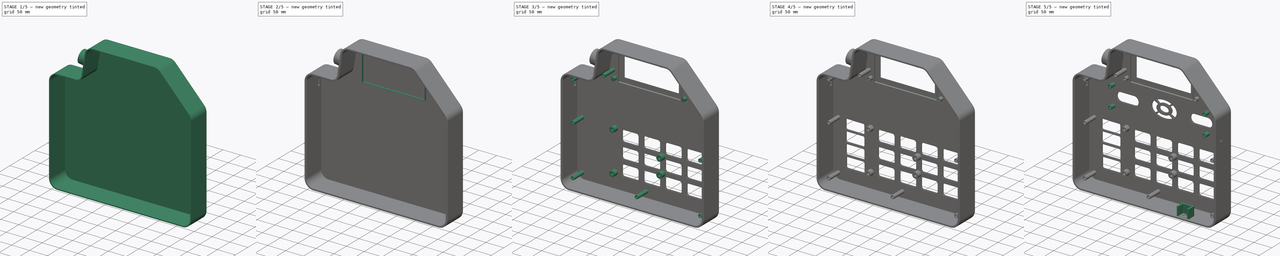
[diagram: build sequence overview — one tinted view per stage of 5, left to right]
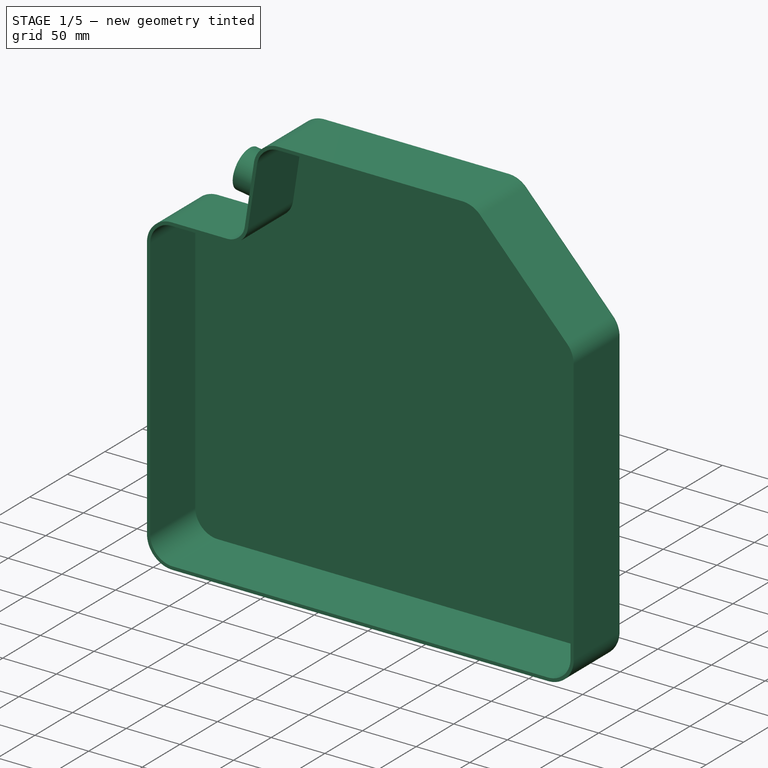
[diagram: stage 1 of 5 — iso view after this stage's code; geometry added in this stage tinted green]
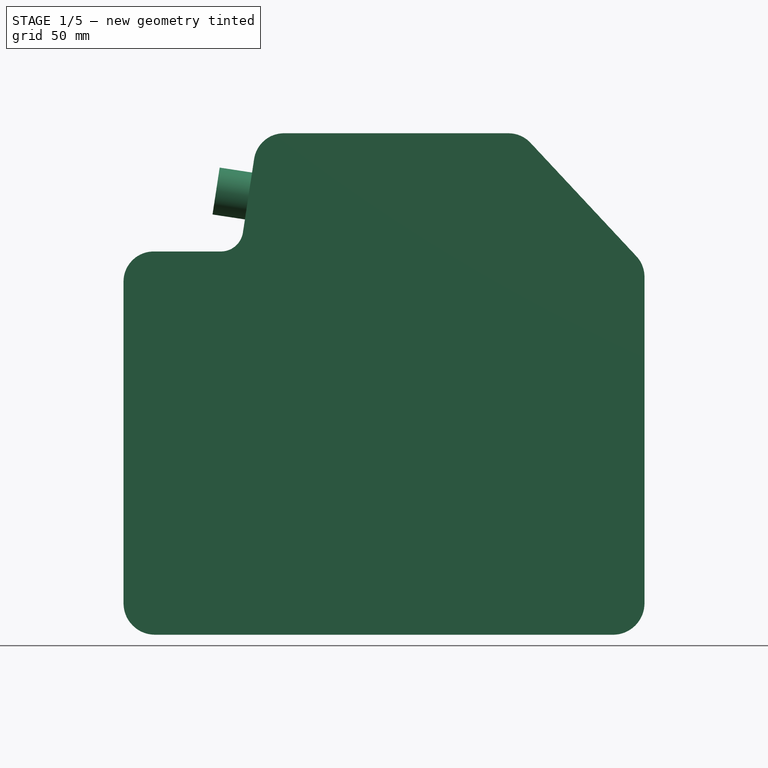
[diagram: stage 1 of 5 — front view after this stage's code; geometry added in this stage tinted green]
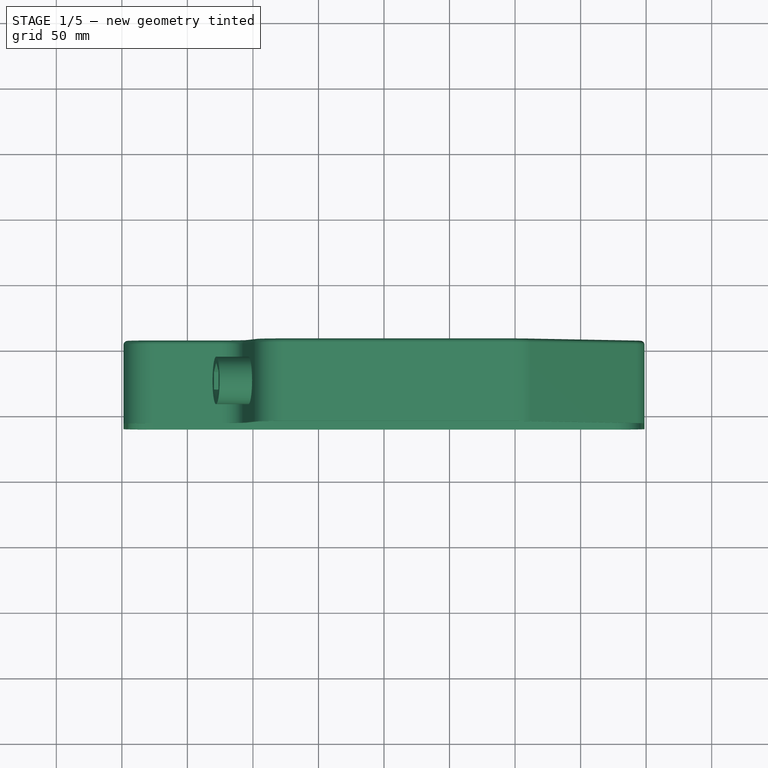
[diagram: stage 1 of 5 — top view after this stage's code; geometry added in this stage tinted green]
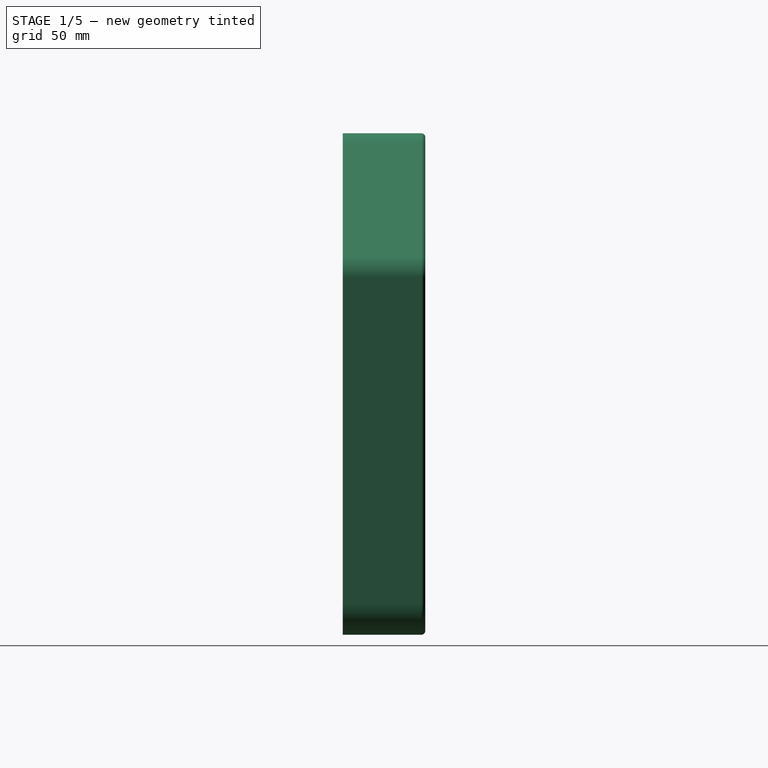
[diagram: stage 1 of 5 — right view after this stage's code; geometry added in this stage tinted green]
FCSTD DOCUMENT  (FreeCAD 0.21R33771 (Git))
Label: klaviatura
License: All rights reserved
LicenseURL: http://en.wikipedia.org/wiki/All_rights_reserved
objects: Sketcher::SketchObject×20, PartDesign::Pocket×11, PartDesign::Pad×9, PartDesign::Fillet×6, PartDesign::Hole×4, PartDesign::Thickness×2, PartDesign::Chamfer×1, PartDesign::Body×1
note: 87 computed .brp shape members not serialized (recipe doc carries the construction recipe); baked Part::Feature solids carry a one-line shape summary decoded from their .brp

FEATURE [Sketcher::SketchObject] Sketch
  FullyConstrained = false
  MapMode = 5
  Placement = pos=(0,0,0) rot=(1,0,0;1.5708rad)
  Support = -> [XZ_Plane]
  sketch-geometry (8):
    g0: LineSegment StartX=-195.732 StartY=98.1119 StartZ=0 EndX=-195.732 EndY=-188.292 EndZ=0
    g1: LineSegment StartX=-195.732 StartY=-188.292 StartZ=0 EndX=195.732 EndY=-188.292 EndZ=0
    g2: LineSegment StartX=195.732 StartY=-188.292 StartZ=0 EndX=195.732 EndY=89.653 EndZ=0
    g3: LineSegment StartX=103.677 StartY=188.292 StartZ=0 EndX=-93.521 EndY=188.292 EndZ=0
    g4: GeomPoint X=0 Y=0 Z=0
    g5: LineSegment StartX=103.677 StartY=188.292 StartZ=0 EndX=195.732 EndY=89.653 EndZ=0
    g6: LineSegment StartX=-93.521 StartY=188.292 StartZ=0 EndX=-107.267 EndY=98.1119 EndZ=0
    g7: LineSegment StartX=-107.267 StartY=98.1119 StartZ=0 EndX=-195.732 EndY=98.1119 EndZ=0
  constraints (13):
    c: Coincident(g0,g1)
    c: Coincident(g1,g2)
    c: Horizontal(g1)
    c: Horizontal(g3)
    c: Vertical(g0)
    c: Vertical(g2)
    c: Coincident(g4,g-1)
    c: Coincident(g7,g6)
    c: Horizontal(g7)
    c: Coincident(g3,g6)
    c: Coincident(g0,g7)
    c: Coincident(g2,g5)
    c: Coincident(g3,g5)
FEATURE [PartDesign::Pad] Pad
  Direction = (0,-1,2e-16)
  Length = 60
  Length2 = 10
  Placement = pos=(0,0,0) rot=(1,0,0;1.5708rad)
  Profile = -> Sketch
  ReferenceAxis = -> Sketch [N_Axis]
  Refine = true
  Type = 0
FEATURE [PartDesign::Fillet] Fillet
  Base = -> Pad [Edge1,Edge14,Edge11,Edge8]
  BaseFeature = -> Pad
  Placement = pos=(0,0,0) rot=(1,0,0;1.5708rad)
  Radius = 20
  Refine = true
  SupportTransform = false
  UseAllEdges = false
FEATURE [PartDesign::Fillet] Fillet001
  Base = -> Fillet [Edge27]
  BaseFeature = -> Fillet
  Placement = pos=(0,0,0) rot=(1,0,0;1.5708rad)
  Radius = 20
  Refine = true
  SupportTransform = false
  UseAllEdges = false
FEATURE [PartDesign::Fillet] Fillet002
  Base = -> Fillet001 [Edge22,Edge26]
  BaseFeature = -> Fillet001
  Placement = pos=(0,0,0) rot=(1,0,0;1.5708rad)
  Radius = 21
  Refine = true
  SupportTransform = false
  UseAllEdges = false
FEATURE [PartDesign::Thickness] Thickness
  Base = -> Fillet002 [Face16]
  BaseFeature = -> Fillet002
  Intersection = true
  Join = 0
  Mode = 0
  Refine = true
  SupportTransform = false
  Value = 3
FEATURE [Sketcher::SketchObject] Sketch002
  FullyConstrained = false
  MapMode = 5
  Placement = pos=(-122.412,8.7e-15,18.6587) rot=(0.545964,-0.545964,-0.635489;2.00938rad)
  Support = -> [Thickness]
  sketch-geometry (1):
    g0: Circle CenterX=28.3231 CenterY=126.245 CenterZ=0 NormalX=0 NormalY=0 NormalZ=1 AngleXU=0 Radius=18.0964
FEATURE [PartDesign::Pad] Pad001
  BaseFeature = -> Thickness
  Direction = (-0.988582,0,0.150685)
  Length = 25
  Length2 = 10
  Profile = -> Sketch002
  ReferenceAxis = -> Sketch002 [N_Axis]
  Refine = true
  Type = 0
FEATURE [Sketcher::SketchObject] Sketch003
  FullyConstrained = false
  MapMode = 5
  Placement = pos=(-147.127,1.5e-15,22.4259) rot=(0.545964,-0.545964,-0.635489;2.00938rad)
  Support = -> [Pad001]
  sketch-geometry (7):
    g0: LineSegment StartX=35.127 StartY=115.579 StartZ=0 EndX=41.5573 EndY=127.246 EndZ=0
    g1: LineSegment StartX=41.5573 StartY=127.246 StartZ=0 EndX=34.6683 EndY=138.649 EndZ=0
    g2: LineSegment StartX=34.6683 StartY=138.649 StartZ=0 EndX=21.349 EndY=138.384 EndZ=0
    g3: LineSegment StartX=21.349 StartY=138.384 StartZ=0 EndX=14.9187 EndY=126.717 EndZ=0
    g4: LineSegment StartX=14.9187 StartY=126.717 StartZ=0 EndX=21.8077 EndY=115.314 EndZ=0
    g5: LineSegment StartX=21.8077 StartY=115.314 StartZ=0 EndX=35.127 EndY=115.579 EndZ=0
    g6: Circle CenterX=28.238 CenterY=126.982 CenterZ=0 NormalX=0 NormalY=0 NormalZ=1 AngleXU=0 Radius=13.322
  constraints (13):
    c: Coincident(g0,g1)
    c: Coincident(g1,g2)
    c: Coincident(g2,g3)
    c: Coincident(g3,g4)
    c: Coincident(g4,g5)
    c: Coincident(g5,g0)
    c: Equal(g0, g1-g5) x5
    c: PointOnObject(g0,g6)
    c: PointOnObject(g1,g6)
    c: PointOnObject(g2,g6)
    c: PointOnObject(g3,g6)
    c: PointOnObject(g4,g6)
    c: PointOnObject(g5,g6)
FEATURE [PartDesign::Pocket] Pocket
  BaseFeature = -> Pad001
  Direction = (0.988582,1e-16,-0.150685)
  Length = 17
  Length2 = 5
  Profile = -> Sketch003
  ReferenceAxis = -> Sketch003 [N_Axis]
  Refine = true
  Type = 0
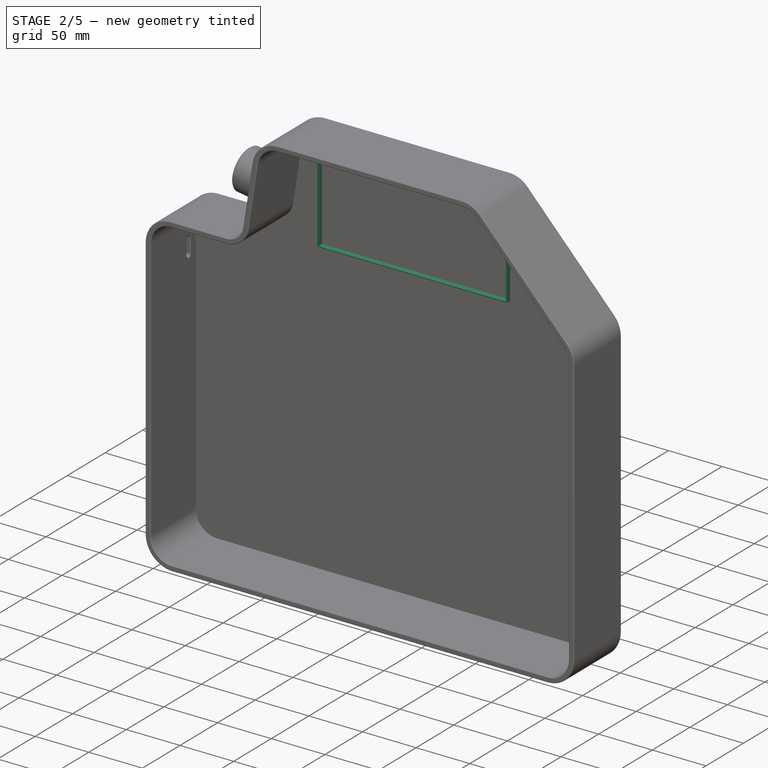
[diagram: stage 2 of 5 — iso view after this stage's code; geometry added in this stage tinted green]
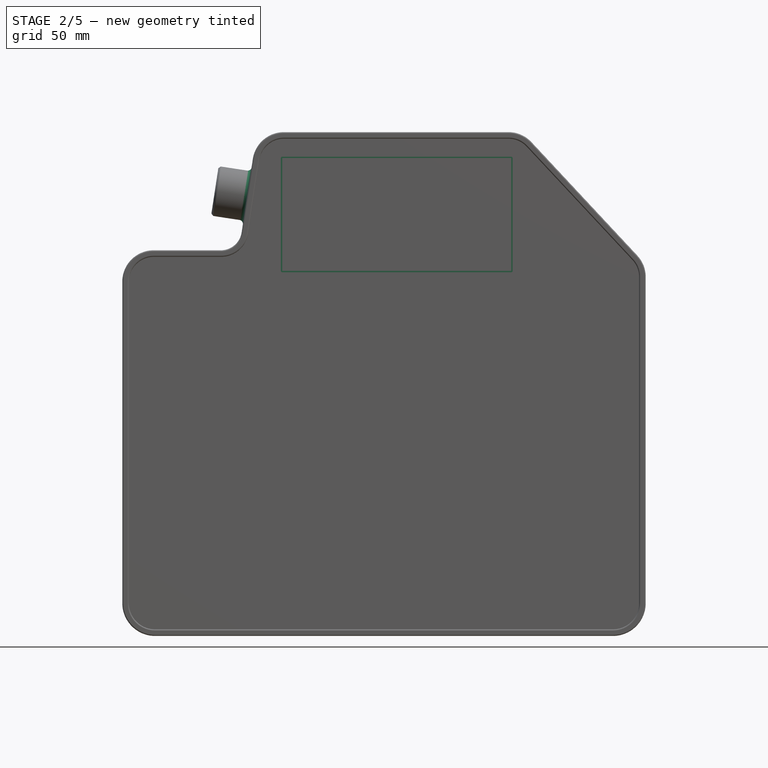
[diagram: stage 2 of 5 — front view after this stage's code; geometry added in this stage tinted green]
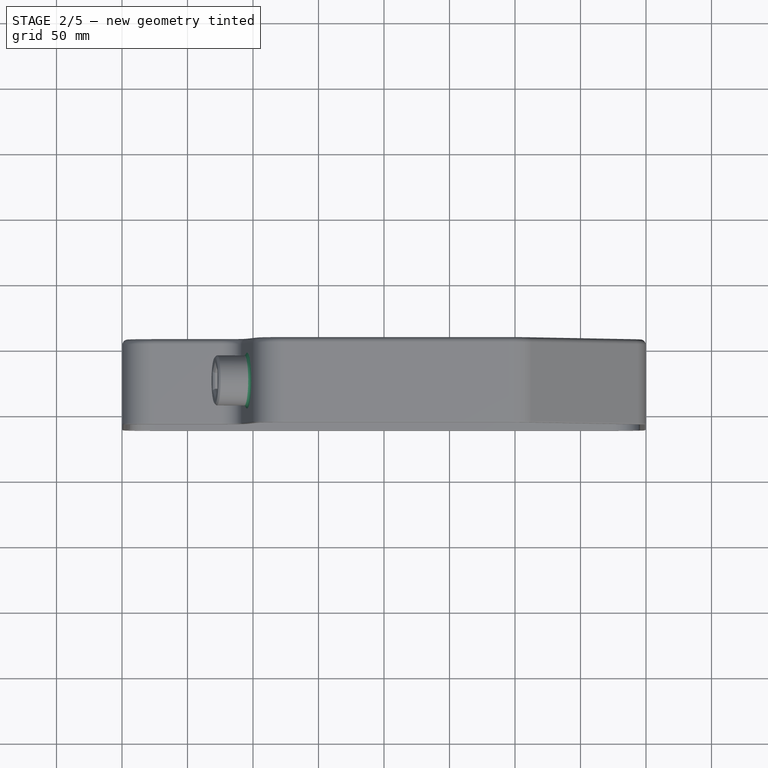
[diagram: stage 2 of 5 — top view after this stage's code; geometry added in this stage tinted green]
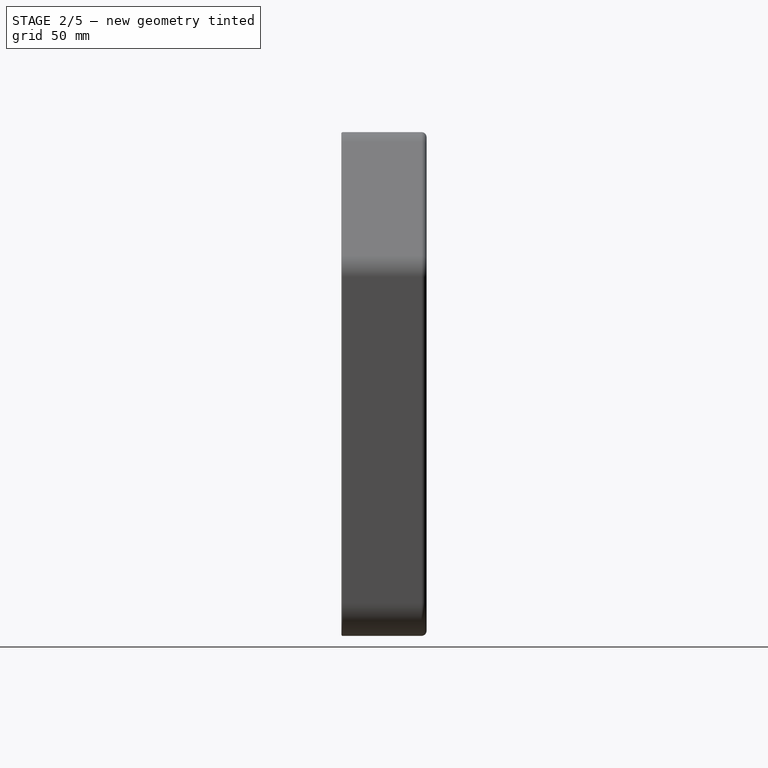
[diagram: stage 2 of 5 — right view after this stage's code; geometry added in this stage tinted green]
FEATURE [PartDesign::Fillet] Fillet003
  Base = -> Pocket [Edge68]
  BaseFeature = -> Pocket
  Radius = 4
  Refine = true
  SupportTransform = false
  UseAllEdges = false
FEATURE [PartDesign::Chamfer] Chamfer
  Angle = 45
  Base = -> Fillet003 [Face36]
  BaseFeature = -> Fillet003
  ChamferType = 0
  FlipDirection = false
  Refine = true
  Size = 1
  Size2 = 1
  SupportTransform = false
  UseAllEdges = false
FEATURE [Sketcher::SketchObject] Sketch004
  FullyConstrained = false
  MapMode = 5
  Placement = pos=(-198.732,0,0) rot=(0.57735,-0.57735,-0.57735;2.0944rad)
  Support = -> [Chamfer]
  sketch-geometry (4):
    g0: ArcOfCircle CenterX=10.2434 CenterY=63.2019 CenterZ=0 NormalX=0 NormalY=0 NormalZ=1 AngleXU=0 Radius=3.27807 StartAngle=0 EndAngle=3.14159
    g1: ArcOfCircle CenterX=10.2434 CenterY=50.0897 CenterZ=0 NormalX=0 NormalY=0 NormalZ=1 AngleXU=0 Radius=3.27807 StartAngle=3.14159 EndAngle=6.28319
    g2: LineSegment StartX=6.96534 StartY=63.202 StartZ=0 EndX=6.96534 EndY=50.0897 EndZ=0
    g3: LineSegment StartX=13.5215 StartY=50.0897 StartZ=0 EndX=13.5215 EndY=63.2019 EndZ=0
  constraints (6):
    c: Tangent(g0,g2) = -1.5708
    c: Tangent(g2,g1) = -1.5708
    c: Tangent(g1,g3) = -1.5708
    c: Tangent(g3,g0) = -1.5708
    c: Equal(g0,g1)
    c: Vertical(g2)
FEATURE [PartDesign::Pocket] Pocket001
  BaseFeature = -> Chamfer
  Direction = (1,0,0)
  Length = 5
  Length2 = 5
  Profile = -> Sketch004
  ReferenceAxis = -> Sketch004 [N_Axis]
  Refine = true
  Type = 0
FEATURE [Sketcher::SketchObject] Sketch005
  FullyConstrained = false
  MapMode = 5
  Placement = pos=(0,0,0) rot=(1,0,0;1.5708rad)
  Support = -> [Pocket001]
  sketch-geometry (4):
    g0: LineSegment StartX=-77.7064 StartY=172.471 StartZ=0 EndX=97.164 EndY=172.471 EndZ=0
    g1: LineSegment StartX=97.164 StartY=172.471 StartZ=0 EndX=97.164 EndY=86.3341 EndZ=0
    g2: LineSegment StartX=97.164 StartY=86.3341 StartZ=0 EndX=-77.7064 EndY=86.3341 EndZ=0
    g3: LineSegment StartX=-77.7064 StartY=86.3341 StartZ=0 EndX=-77.7064 EndY=172.471 EndZ=0
  constraints (8):
    c: Coincident(g0,g1)
    c: Coincident(g1,g2)
    c: Coincident(g2,g3)
    c: Coincident(g3,g0)
    c: Horizontal(g0)
    c: Horizontal(g2)
    c: Vertical(g1)
    c: Vertical(g3)
FEATURE [PartDesign::Pad] Pad002
  BaseFeature = -> Pocket001
  Direction = (0,-1,2e-16)
  Length = 5
  Length2 = 10
  Profile = -> Sketch005
  ReferenceAxis = -> Sketch005 [N_Axis]
  Refine = true
  Type = 0
FEATURE [PartDesign::Thickness] Thickness001
  Base = -> Pad002 [Face71]
  BaseFeature = -> Pad002
  Intersection = false
  Join = 0
  Mode = 0
  Refine = true
  SupportTransform = false
  Value = 1
FEATURE [Sketcher::SketchObject] Sketch006
  FullyConstrained = false
  MapMode = 5
  Placement = pos=(0,4.32e-14,98.1119) rot=(0,0,1;0rad)
  Support = -> [Thickness001]
  sketch-geometry (4):
    g0: LineSegment StartX=-67.8103 StartY=167.209 StartZ=0 EndX=87.1497 EndY=167.209 EndZ=0
    g1: LineSegment StartX=87.1497 StartY=167.209 StartZ=0 EndX=87.1497 EndY=91.8891 EndZ=0
    g2: LineSegment StartX=87.1497 StartY=91.8891 StartZ=0 EndX=-67.8103 EndY=91.8891 EndZ=0
    g3: LineSegment StartX=-67.8103 StartY=91.8891 StartZ=0 EndX=-67.8103 EndY=167.209 EndZ=0
  constraints (10):
    c: Coincident(g0,g1)
    c: Coincident(g1,g2)
    c: Coincident(g2,g3)
    c: Coincident(g3,g0)
    c: Horizontal(g0)
    c: Horizontal(g2)
    c: Vertical(g1)
    c: Vertical(g3)
    c: DistanceX(g0,g0) = 154.96
    c: DistanceY(g3,g3) = 75.32
FEATURE [PartDesign::Pocket] Pocket002
  BaseFeature = -> Thickness001
  Direction = (0,-4e-16,-1)
  Length = 5
  Length2 = 5
  Profile = -> Sketch006
  ReferenceAxis = -> Sketch006 [N_Axis]
  Refine = true
  Type = 0
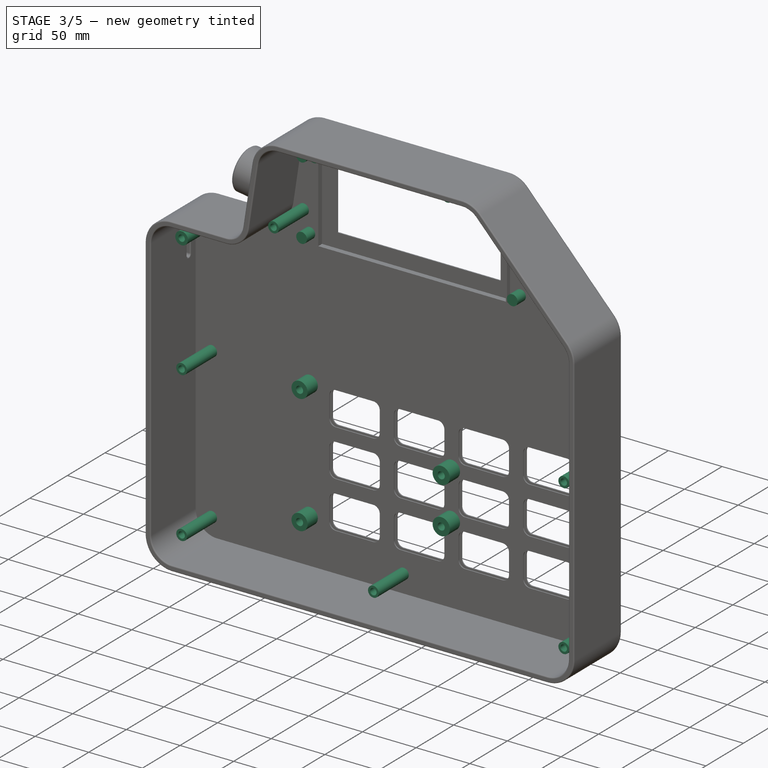
[diagram: stage 3 of 5 — iso view after this stage's code; geometry added in this stage tinted green]
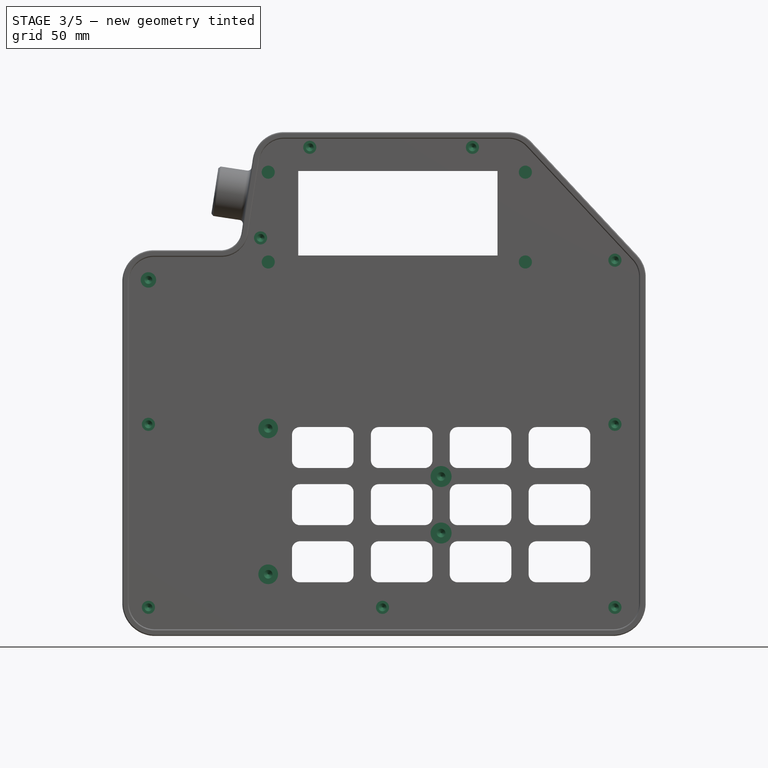
[diagram: stage 3 of 5 — front view after this stage's code; geometry added in this stage tinted green]
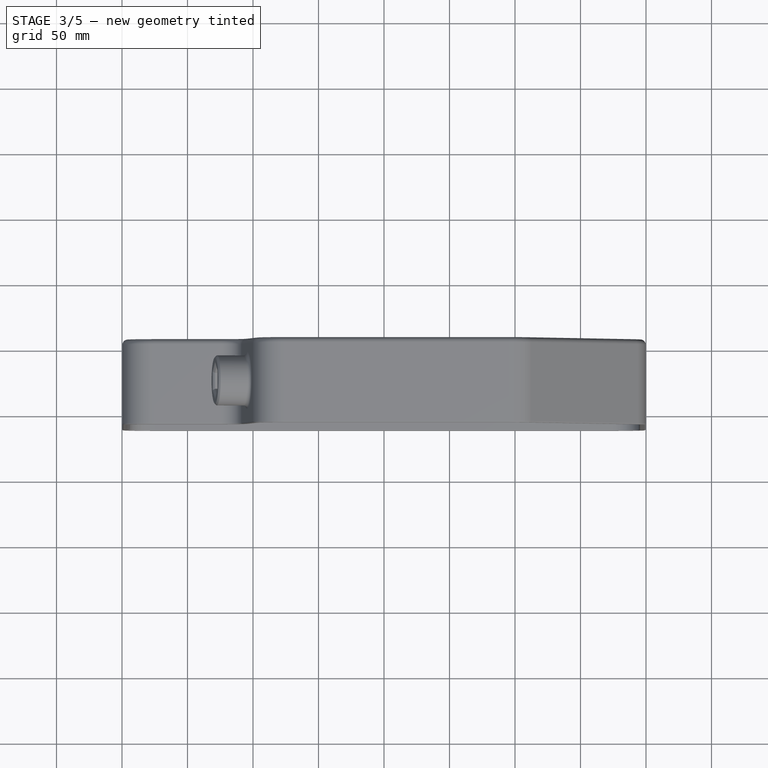
[diagram: stage 3 of 5 — top view after this stage's code; geometry added in this stage tinted green]
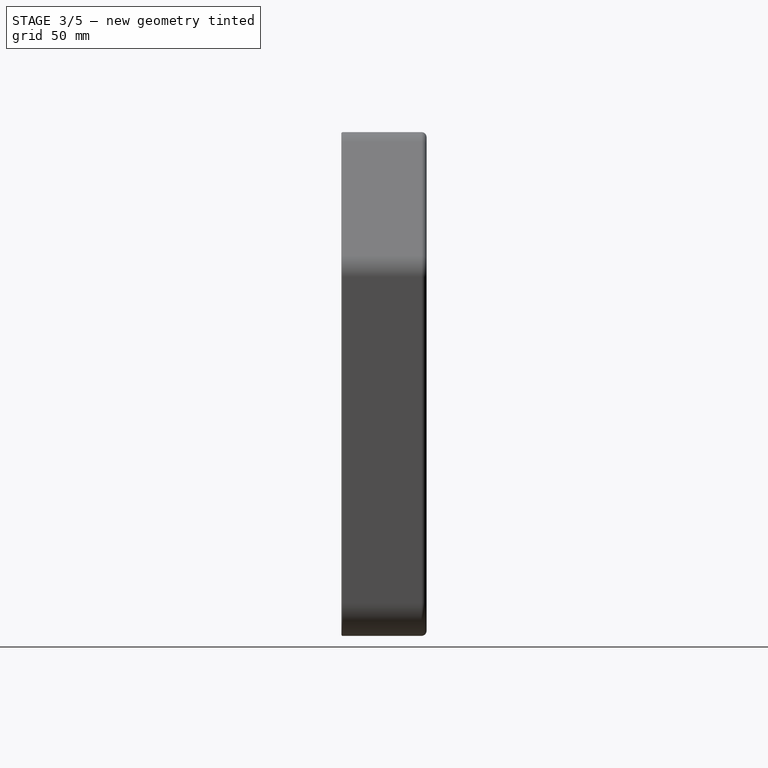
[diagram: stage 3 of 5 — right view after this stage's code; geometry added in this stage tinted green]
FEATURE [Sketcher::SketchObject] Sketch008
  FullyConstrained = false
  MapMode = 5
  Placement = pos=(0,-1,2e-16) rot=(1,0,0;1.5708rad)
  sketch-geometry (10):
    g0: Circle CenterX=-56.6615 CenterY=180.652 CenterZ=0 NormalX=0 NormalY=0 NormalZ=1 AngleXU=0 Radius=5
    g1: Circle CenterX=67.5121 CenterY=180.652 CenterZ=0 NormalX=0 NormalY=0 NormalZ=1 AngleXU=0 Radius=5
    g2: Circle CenterX=176.258 CenterY=94.5123 CenterZ=0 NormalX=0 NormalY=0 NormalZ=1 AngleXU=0 Radius=5
    g3: Circle CenterX=-94.2264 CenterY=111.523 CenterZ=0 NormalX=0 NormalY=0 NormalZ=1 AngleXU=0 Radius=5
    g4: Circle CenterX=-179.835 CenterY=79.433 CenterZ=0 NormalX=0 NormalY=0 NormalZ=1 AngleXU=0 Radius=5.89817
    g5: Circle CenterX=-179.835 CenterY=-170.482 CenterZ=0 NormalX=0 NormalY=0 NormalZ=1 AngleXU=0 Radius=5
    g6: Circle CenterX=-1.14738 CenterY=-170.482 CenterZ=0 NormalX=0 NormalY=0 NormalZ=1 AngleXU=0 Radius=5
    g7: Circle CenterX=-179.835 CenterY=-30.7782 CenterZ=0 NormalX=0 NormalY=0 NormalZ=1 AngleXU=0 Radius=5
    g8: Circle CenterX=176.258 CenterY=-30.7782 CenterZ=0 NormalX=0 NormalY=0 NormalZ=1 AngleXU=0 Radius=5
    g9: Circle CenterX=176.258 CenterY=-170.482 CenterZ=0 NormalX=0 NormalY=0 NormalZ=1 AngleXU=0 Radius=5
  constraints (9):
    c: Equal(g0,g1)
    c: Equal(g0,g2)
    c: Equal(g0,g3)
    c: Equal(g0,g7)
    c: Equal(g0,g8)
    c: Equal(g0,g5)
    c: Equal(g0,g6)
    c: Equal(g0,g9)
    c: Radius(g0) = 5
FEATURE [PartDesign::Pad] Pad004
  BaseFeature = -> Pocket002
  Direction = (0,-1,2e-16)
  Length = 40
  Length2 = 10
  Profile = -> Sketch008
  ReferenceAxis = -> Sketch008 [N_Axis]
  Refine = true
  Type = 0
FEATURE [Sketcher::SketchObject] Sketch009
  FullyConstrained = false
  MapMode = 5
  Placement = pos=(0,-1,2e-16) rot=(1,0,0;1.5708rad)
  Support = -> [Pad004]
  sketch-geometry (107):
    g0: LineSegment StartX=116.418 StartY=-120.069 StartZ=0 EndX=151.408 EndY=-120.069 EndZ=0
    g1: LineSegment StartX=157.408 StartY=-126.069 StartZ=0 EndX=157.408 EndY=-145.349 EndZ=0
    g2: LineSegment StartX=151.408 StartY=-151.349 StartZ=0 EndX=116.418 EndY=-151.349 EndZ=0
    g3: LineSegment StartX=110.418 StartY=-145.349 StartZ=0 EndX=110.418 EndY=-126.069 EndZ=0
    g4: ArcOfCircle CenterX=116.418 CenterY=-145.349 CenterZ=0 NormalX=0 NormalY=0 NormalZ=1 AngleXU=0 Radius=6 StartAngle=3.14159 EndAngle=4.71239
    g5: ArcOfCircle CenterX=151.408 CenterY=-145.349 CenterZ=0 NormalX=0 NormalY=0 NormalZ=1 AngleXU=0 Radius=6 StartAngle=4.71239 EndAngle=6.28319
    g6: ArcOfCircle CenterX=151.408 CenterY=-126.069 CenterZ=0 NormalX=0 NormalY=0 NormalZ=1 AngleXU=0 Radius=6 StartAngle=3e-16 EndAngle=1.5708
    g7: ArcOfCircle CenterX=116.418 CenterY=-126.069 CenterZ=0 NormalX=0 NormalY=0 NormalZ=1 AngleXU=0 Radius=6 StartAngle=1.5708 EndAngle=3.14159
    g8: LineSegment StartX=56.1948 StartY=-120.069 StartZ=0 EndX=91.1848 EndY=-120.069 EndZ=0
    g9: LineSegment StartX=97.1848 StartY=-126.069 StartZ=0 EndX=97.1848 EndY=-145.349 EndZ=0
    g10: LineSegment StartX=91.1848 StartY=-151.349 StartZ=0 EndX=56.1948 EndY=-151.349 EndZ=0
    g11: LineSegment StartX=50.1948 StartY=-145.349 StartZ=0 EndX=50.1948 EndY=-126.069 EndZ=0
    g12: ArcOfCircle CenterX=56.1948 CenterY=-145.349 CenterZ=0 NormalX=0 NormalY=0 NormalZ=1 AngleXU=0 Radius=6 StartAngle=3.14159 EndAngle=4.71239
    g13: ArcOfCircle CenterX=91.1848 CenterY=-145.349 CenterZ=0 NormalX=0 NormalY=0 NormalZ=1 AngleXU=0 Radius=6 StartAngle=4.71239 EndAngle=6.28319
    g14: ArcOfCircle CenterX=91.1848 CenterY=-126.069 CenterZ=0 NormalX=0 NormalY=0 NormalZ=1 AngleXU=0 Radius=6 StartAngle=-9e-16 EndAngle=1.5708
    g15: ArcOfCircle CenterX=56.1948 CenterY=-126.069 CenterZ=0 NormalX=0 NormalY=0 NormalZ=1 AngleXU=0 Radius=6 StartAngle=1.5708 EndAngle=3.14159
    g16: LineSegment StartX=116.418 StartY=-120.069 StartZ=0 EndX=56.1948 EndY=-120.069 EndZ=0
    g17: LineSegment StartX=-4.02823 StartY=-120.069 StartZ=0 EndX=30.9618 EndY=-120.069 EndZ=0
    g18: LineSegment StartX=36.9618 StartY=-126.069 StartZ=0 EndX=36.9618 EndY=-145.349 EndZ=0
    g19: LineSegment StartX=30.9618 StartY=-151.349 StartZ=0 EndX=-4.02823 EndY=-151.349 EndZ=0
    g20: LineSegment StartX=-10.0282 StartY=-145.349 StartZ=0 EndX=-10.0282 EndY=-126.069 EndZ=0
    g21: ArcOfCircle CenterX=-4.02823 CenterY=-145.349 CenterZ=0 NormalX=0 NormalY=0 NormalZ=1 AngleXU=0 Radius=6 StartAngle=3.14159 EndAngle=4.71239
    g22: ArcOfCircle CenterX=30.9618 CenterY=-145.349 CenterZ=0 NormalX=0 NormalY=0 NormalZ=1 AngleXU=0 Radius=6 StartAngle=4.71239 EndAngle=6.28319
    g23: ArcOfCircle CenterX=30.9618 CenterY=-126.069 CenterZ=0 NormalX=0 NormalY=0 NormalZ=1 AngleXU=0 Radius=6 StartAngle=0 EndAngle=1.5708
    g24: ArcOfCircle CenterX=-4.02823 CenterY=-126.069 CenterZ=0 NormalX=0 NormalY=0 NormalZ=1 AngleXU=0 Radius=6 StartAngle=1.5708 EndAngle=3.14159
    g25: LineSegment StartX=56.1948 StartY=-120.069 StartZ=0 EndX=-4.02823 EndY=-120.069 EndZ=0
    g26: LineSegment StartX=-64.2513 StartY=-120.069 StartZ=0 EndX=-29.2613 EndY=-120.069 EndZ=0
    g27: LineSegment StartX=-23.2613 StartY=-126.069 StartZ=0 EndX=-23.2613 EndY=-145.349 EndZ=0
    g28: LineSegment StartX=-29.2613 StartY=-151.349 StartZ=0 EndX=-64.2513 EndY=-151.349 EndZ=0
    g29: LineSegment StartX=-70.2513 StartY=-145.349 StartZ=0 EndX=-70.2513 EndY=-126.069 EndZ=0
    g30: ArcOfCircle CenterX=-64.2513 CenterY=-145.349 CenterZ=0 NormalX=0 NormalY=0 NormalZ=1 AngleXU=0 Radius=6 StartAngle=3.14159 EndAngle=4.71239
    g31: ArcOfCircle CenterX=-29.2613 CenterY=-145.349 CenterZ=0 NormalX=0 NormalY=0 NormalZ=1 AngleXU=0 Radius=6 StartAngle=4.71239 EndAngle=6.28319
    g32: ArcOfCircle CenterX=-29.2613 CenterY=-126.069 CenterZ=0 NormalX=0 NormalY=0 NormalZ=1 AngleXU=0 Radius=6 StartAngle=9e-16 EndAngle=1.5708
    g33: ArcOfCircle CenterX=-64.2513 CenterY=-126.069 CenterZ=0 NormalX=0 NormalY=0 NormalZ=1 AngleXU=0 Radius=6 StartAngle=1.5708 EndAngle=3.14159
    g34: LineSegment StartX=-4.02823 StartY=-120.069 StartZ=0 EndX=-64.2513 EndY=-120.069 EndZ=0
    g35: LineSegment StartX=116.418 StartY=-76.4688 StartZ=0 EndX=151.408 EndY=-76.4688 EndZ=0
    g36: LineSegment StartX=157.408 StartY=-82.4688 StartZ=0 EndX=157.408 EndY=-101.749 EndZ=0
    g37: LineSegment StartX=151.408 StartY=-107.749 StartZ=0 EndX=116.418 EndY=-107.749 EndZ=0
    g38: LineSegment StartX=110.418 StartY=-101.749 StartZ=0 EndX=110.418 EndY=-82.4688 EndZ=0
    g39: ArcOfCircle CenterX=116.418 CenterY=-101.749 CenterZ=0 NormalX=0 NormalY=0 NormalZ=1 AngleXU=0 Radius=6 StartAngle=3.14159 EndAngle=4.71239
    g40: ArcOfCircle CenterX=151.408 CenterY=-101.749 CenterZ=0 NormalX=0 NormalY=0 NormalZ=1 AngleXU=0 Radius=6 StartAngle=4.71239 EndAngle=6.28319
    g41: ArcOfCircle CenterX=151.408 CenterY=-82.4688 CenterZ=0 NormalX=0 NormalY=0 NormalZ=1 AngleXU=0 Radius=6 StartAngle=7e-16 EndAngle=1.5708
    g42: ArcOfCircle CenterX=116.418 CenterY=-82.4688 CenterZ=0 NormalX=0 NormalY=0 NormalZ=1 AngleXU=0 Radius=6 StartAngle=1.5708 EndAngle=3.14159
    g43: LineSegment StartX=56.1948 StartY=-76.4688 StartZ=0 EndX=91.1848 EndY=-76.4688 EndZ=0
    g44: LineSegment StartX=97.1848 StartY=-82.4688 StartZ=0 EndX=97.1848 EndY=-101.749 EndZ=0
    g45: LineSegment StartX=91.1848 StartY=-107.749 StartZ=0 EndX=56.1948 EndY=-107.749 EndZ=0
    g46: LineSegment StartX=50.1948 StartY=-101.749 StartZ=0 EndX=50.1948 EndY=-82.4688 EndZ=0
    g47: ArcOfCircle CenterX=56.1948 CenterY=-101.749 CenterZ=0 NormalX=0 NormalY=0 NormalZ=1 AngleXU=0 Radius=6 StartAngle=3.14159 EndAngle=4.71239
    g48: ArcOfCircle CenterX=91.1848 CenterY=-101.749 CenterZ=0 NormalX=0 NormalY=0 NormalZ=1 AngleXU=0 Radius=6 StartAngle=4.71239 EndAngle=6.28319
    g49: ArcOfCircle CenterX=91.1848 CenterY=-82.4688 CenterZ=0 NormalX=0 NormalY=0 NormalZ=1 AngleXU=0 Radius=6 StartAngle=9e-16 EndAngle=1.5708
    g50: ArcOfCircle CenterX=56.1948 CenterY=-82.4688 CenterZ=0 NormalX=0 NormalY=0 NormalZ=1 AngleXU=0 Radius=6 StartAngle=1.5708 EndAngle=3.14159
    g51: LineSegment StartX=116.418 StartY=-76.4688 StartZ=0 EndX=56.1948 EndY=-76.4688 EndZ=0
    g52: LineSegment StartX=-4.02823 StartY=-76.4688 StartZ=0 EndX=30.9618 EndY=-76.4688 EndZ=0
    g53: LineSegment StartX=36.9618 StartY=-82.4688 StartZ=0 EndX=36.9618 EndY=-101.749 EndZ=0
    g54: LineSegment StartX=30.9618 StartY=-107.749 StartZ=0 EndX=-4.02823 EndY=-107.749 EndZ=0
    g55: LineSegment StartX=-10.0282 StartY=-101.749 StartZ=0 EndX=-10.0282 EndY=-82.4688 EndZ=0
    g56: ArcOfCircle CenterX=-4.02823 CenterY=-101.749 CenterZ=0 NormalX=0 NormalY=0 NormalZ=1 AngleXU=0 Radius=6 StartAngle=3.14159 EndAngle=4.71239
    g57: ArcOfCircle CenterX=30.9618 CenterY=-101.749 CenterZ=0 NormalX=0 NormalY=0 NormalZ=1 AngleXU=0 Radius=6 StartAngle=4.71239 EndAngle=6.28319
    g58: ArcOfCircle CenterX=30.9618 CenterY=-82.4688 CenterZ=0 NormalX=0 NormalY=0 NormalZ=1 AngleXU=0 Radius=6 StartAngle=-9e-16 EndAngle=1.5708
    g59: ArcOfCircle CenterX=-4.02823 CenterY=-82.4688 CenterZ=0 NormalX=0 NormalY=0 NormalZ=1 AngleXU=0 Radius=6 StartAngle=1.5708 EndAngle=3.14159
    g60: LineSegment StartX=56.1948 StartY=-76.4688 StartZ=0 EndX=-4.02823 EndY=-76.4688 EndZ=0
    g61: LineSegment StartX=-64.2513 StartY=-76.4688 StartZ=0 EndX=-29.2613 EndY=-76.4688 EndZ=0
    g62: LineSegment StartX=-23.2613 StartY=-82.4688 StartZ=0 EndX=-23.2613 EndY=-101.749 EndZ=0
    g63: LineSegment StartX=-29.2613 StartY=-107.749 StartZ=0 EndX=-64.2513 EndY=-107.749 EndZ=0
    g64: LineSegment StartX=-70.2513 StartY=-101.749 StartZ=0 EndX=-70.2513 EndY=-82.4688 EndZ=0
    g65: ArcOfCircle CenterX=-64.2513 CenterY=-101.749 CenterZ=0 NormalX=0 NormalY=0 NormalZ=1 AngleXU=0 Radius=6 StartAngle=3.14159 EndAngle=4.71239
    g66: ArcOfCircle CenterX=-29.2613 CenterY=-101.749 CenterZ=0 NormalX=0 NormalY=0 NormalZ=1 AngleXU=0 Radius=6 StartAngle=4.71239 EndAngle=6.28319
    g67: ArcOfCircle CenterX=-29.2613 CenterY=-82.4688 CenterZ=0 NormalX=0 NormalY=0 NormalZ=1 AngleXU=0 Radius=6 StartAngle=0 EndAngle=1.5708
    g68: ArcOfCircle CenterX=-64.2513 CenterY=-82.4688 CenterZ=0 NormalX=0 NormalY=0 NormalZ=1 AngleXU=0 Radius=6 StartAngle=1.5708 EndAngle=3.14159
    g69: LineSegment StartX=-4.02823 StartY=-76.4688 StartZ=0 EndX=-64.2513 EndY=-76.4688 EndZ=0
    g70: LineSegment StartX=116.418 StartY=-32.8688 StartZ=0 EndX=151.408 EndY=-32.8688 EndZ=0
    g71: LineSegment StartX=157.408 StartY=-38.8688 StartZ=0 EndX=157.408 EndY=-58.1488 EndZ=0
    g72: LineSegment StartX=151.408 StartY=-64.1488 StartZ=0 EndX=116.418 EndY=-64.1488 EndZ=0
    g73: LineSegment StartX=110.418 StartY=-58.1488 StartZ=0 EndX=110.418 EndY=-38.8688 EndZ=0
    g74: ArcOfCircle CenterX=116.418 CenterY=-58.1488 CenterZ=0 NormalX=0 NormalY=0 NormalZ=1 AngleXU=0 Radius=6 StartAngle=3.14159 EndAngle=4.71239
    g75: ArcOfCircle CenterX=151.408 CenterY=-58.1488 CenterZ=0 NormalX=0 NormalY=0 NormalZ=1 AngleXU=0 Radius=6 StartAngle=4.71239 EndAngle=6.28319
    g76: ArcOfCircle CenterX=151.408 CenterY=-38.8688 CenterZ=0 NormalX=0 NormalY=0 NormalZ=1 AngleXU=0 Radius=6 StartAngle=0 EndAngle=1.5708
    g77: ArcOfCircle CenterX=116.418 CenterY=-38.8688 CenterZ=0 NormalX=0 NormalY=0 NormalZ=1 AngleXU=0 Radius=6 StartAngle=1.5708 EndAngle=3.14159
    g78: LineSegment StartX=56.1948 StartY=-32.8688 StartZ=0 EndX=91.1848 EndY=-32.8688 EndZ=0
    g79: LineSegment StartX=97.1848 StartY=-38.8688 StartZ=0 EndX=97.1848 EndY=-58.1488 EndZ=0
    g80: LineSegment StartX=91.1848 StartY=-64.1488 StartZ=0 EndX=56.1948 EndY=-64.1488 EndZ=0
    g81: LineSegment StartX=50.1948 StartY=-58.1488 StartZ=0 EndX=50.1948 EndY=-38.8688 EndZ=0
    g82: ArcOfCircle CenterX=56.1948 CenterY=-58.1488 CenterZ=0 NormalX=0 NormalY=0 NormalZ=1 AngleXU=0 Radius=6 StartAngle=3.14159 EndAngle=4.71239
    g83: ArcOfCircle CenterX=91.1848 CenterY=-58.1488 CenterZ=0 NormalX=0 NormalY=0 NormalZ=1 AngleXU=0 Radius=6 StartAngle=4.71239 EndAngle=6.28319
    g84: ArcOfCircle CenterX=91.1848 CenterY=-38.8688 CenterZ=0 NormalX=0 NormalY=0 NormalZ=1 AngleXU=0 Radius=6 StartAngle=0 EndAngle=1.5708
    g85: ArcOfCircle CenterX=56.1948 CenterY=-38.8688 CenterZ=0 NormalX=0 NormalY=0 NormalZ=1 AngleXU=0 Radius=6 StartAngle=1.5708 EndAngle=3.14159
    g86: LineSegment StartX=116.418 StartY=-32.8688 StartZ=0 EndX=56.1948 EndY=-32.8688 EndZ=0
    g87: LineSegment StartX=-4.02823 StartY=-32.8688 StartZ=0 EndX=30.9618 EndY=-32.8688 EndZ=0
    g88: LineSegment StartX=36.9618 StartY=-38.8688 StartZ=0 EndX=36.9618 EndY=-58.1488 EndZ=0
    g89: LineSegment StartX=30.9618 StartY=-64.1488 StartZ=0 EndX=-4.02823 EndY=-64.1488 EndZ=0
    g90: LineSegment StartX=-10.0282 StartY=-58.1488 StartZ=0 EndX=-10.0282 EndY=-38.8688 EndZ=0
    g91: ArcOfCircle CenterX=-4.02823 CenterY=-58.1488 CenterZ=0 NormalX=0 NormalY=0 NormalZ=1 AngleXU=0 Radius=6 StartAngle=3.14159 EndAngle=4.71239
    g92: ArcOfCircle CenterX=30.9618 CenterY=-58.1488 CenterZ=0 NormalX=0 NormalY=0 NormalZ=1 AngleXU=0 Radius=6 StartAngle=4.71239 EndAngle=6.28319
    g93: ArcOfCircle CenterX=30.9618 CenterY=-38.8688 CenterZ=0 NormalX=0 NormalY=0 NormalZ=1 AngleXU=0 Radius=6 StartAngle=-9e-16 EndAngle=1.5708
    g94: ArcOfCircle CenterX=-4.02823 CenterY=-38.8688 CenterZ=0 NormalX=0 NormalY=0 NormalZ=1 AngleXU=0 Radius=6 StartAngle=1.5708 EndAngle=3.14159
    g95: LineSegment StartX=56.1948 StartY=-32.8688 StartZ=0 EndX=-4.02823 EndY=-32.8688 EndZ=0
    g96: LineSegment StartX=-64.2513 StartY=-32.8688 StartZ=0 EndX=-29.2613 EndY=-32.8688 EndZ=0
    g97: LineSegment StartX=-23.2613 StartY=-38.8688 StartZ=0 EndX=-23.2613 EndY=-58.1488 EndZ=0
    g98: LineSegment StartX=-29.2613 StartY=-64.1488 StartZ=0 EndX=-64.2513 EndY=-64.1488 EndZ=0
    g99: LineSegment StartX=-70.2513 StartY=-58.1488 StartZ=0 EndX=-70.2513 EndY=-38.8688 EndZ=0
    g100: ArcOfCircle CenterX=-64.2513 CenterY=-58.1488 CenterZ=0 NormalX=0 NormalY=0 NormalZ=1 AngleXU=0 Radius=6 StartAngle=3.14159 EndAngle=4.71239
    g101: ArcOfCircle CenterX=-29.2613 CenterY=-58.1488 CenterZ=0 NormalX=0 NormalY=0 NormalZ=1 AngleXU=0 Radius=6 StartAngle=4.71239 EndAngle=6.28319
    g102: ArcOfCircle CenterX=-29.2613 CenterY=-38.8688 CenterZ=0 NormalX=0 NormalY=0 NormalZ=1 AngleXU=0 Radius=6 StartAngle=0 EndAngle=1.5708
    g103: ArcOfCircle CenterX=-64.2513 CenterY=-38.8688 CenterZ=0 NormalX=0 NormalY=0 NormalZ=1 AngleXU=0 Radius=6 StartAngle=1.5708 EndAngle=3.14159
    g104: LineSegment StartX=-4.02823 StartY=-32.8688 StartZ=0 EndX=-64.2513 EndY=-32.8688 EndZ=0
    g105: LineSegment StartX=-64.2513 StartY=-145.349 StartZ=0 EndX=-64.2513 EndY=-101.749 EndZ=0
    g106: LineSegment StartX=-64.2513 StartY=-101.749 StartZ=0 EndX=-64.2513 EndY=-58.1488 EndZ=0
  constraints (260):
    c: Horizontal(g0)
    c: Horizontal(g2)
    c: Vertical(g1)
    c: Vertical(g3)
    c: Tangent(g3,g4) = 1.5708
    c: Tangent(g2,g4) = 1.5708
    c: Tangent(g1,g5) = 1.5708
    c: Tangent(g2,g5) = 1.5708
    c: Tangent(g1,g6) = 1.5708
    c: Tangent(g0,g6) = 1.5708
    c: Tangent(g3,g7) = 1.5708
    c: Tangent(g0,g7) = 1.5708
    c: Radius(g7) = 6
    c: Equal(g4,g6)
    c: Equal(g6,g5)
    c: Equal(g5,g7)
    c: DistanceX(g0,g0) = 34.99
    c: DistanceY(g3,g3) = 19.28
    c: Horizontal(g8)
    c: Horizontal(g10)
    c: Vertical(g9)
    c: Vertical(g11)
    c: Tangent(g11,g12) = 1.5708
    c: Tangent(g10,g12) = 1.5708
    c: Tangent(g9,g13) = 1.5708
    c: Tangent(g10,g13) = 1.5708
    c: Tangent(g9,g14) = 1.5708
    c: Tangent(g8,g14) = 1.5708
    c: Tangent(g11,g15) = 1.5708
    c: Tangent(g8,g15) = 1.5708
    c: Radius(g15) = 6
    c: Equal(g12,g14)
    c: Equal(g14,g13)
    c: Equal(g13,g15)
    c: DistanceX(g8,g8) = 34.99
    c: DistanceY(g11,g11) = 19.28
    c: Coincident(g0,g16)
    c: Coincident(g8,g16)
    c: Distance(g16) = 60.223
    c: Angle(g16) = 3.14159
    c: Horizontal(g17)
    c: Horizontal(g19)
    c: Vertical(g18)
    c: Vertical(g20)
    c: Tangent(g20,g21) = 1.5708
    c: Tangent(g19,g21) = 1.5708
    c: Tangent(g18,g22) = 1.5708
    c: Tangent(g19,g22) = 1.5708
    c: Tangent(g18,g23) = 1.5708
    c: Tangent(g17,g23) = 1.5708
    c: Tangent(g20,g24) = 1.5708
    c: Tangent(g17,g24) = 1.5708
    c: Radius(g24) = 6
    c: Equal(g21,g23)
    c: Equal(g23,g22)
    c: Equal(g22,g24)
    c: DistanceX(g17,g17) = 34.99
    c: DistanceY(g20,g20) = 19.28
    c: Coincident(g8,g25)
    c: Coincident(g17,g25)
    c: Equal(g16,g25)
    c: Parallel(g25,g16)
    c: Horizontal(g26)
    c: Horizontal(g28)
    c: Vertical(g27)
    c: Vertical(g29)
    c: Tangent(g29,g30) = 1.5708
    c: Tangent(g28,g30) = 1.5708
    c: Tangent(g27,g31) = 1.5708
    c: Tangent(g28,g31) = 1.5708
    c: Tangent(g27,g32) = 1.5708
    c: Tangent(g26,g32) = 1.5708
    c: Tangent(g29,g33) = 1.5708
    c: Tangent(g26,g33) = 1.5708
    c: Radius(g33) = 6
    c: Equal(g30,g32)
    c: Equal(g32,g31)
    c: Equal(g31,g33)
    c: DistanceX(g26,g26) = 34.99
    c: DistanceY(g29,g29) = 19.28
    c: Coincident(g17,g34)
    c: Coincident(g26,g34)
    c: Equal(g16,g34)
    c: Parallel(g34,g16)
    c: Horizontal(g35)
    c: Horizontal(g37)
    c: Vertical(g36)
    c: Vertical(g38)
    c: Tangent(g38,g39) = 1.5708
    c: Tangent(g37,g39) = 1.5708
    c: Tangent(g36,g40) = 1.5708
    c: Tangent(g37,g40) = 1.5708
    c: Tangent(g36,g41) = 1.5708
    c: Tangent(g35,g41) = 1.5708
    c: Tangent(g38,g42) = 1.5708
    c: Tangent(g35,g42) = 1.5708
    c: Radius(g42) = 6
    c: Equal(g39,g41)
    c: Equal(g41,g40)
    c: Equal(g40,g42)
    c: DistanceX(g35,g35) = 34.99
    c: DistanceY(g38,g38) = 19.28
    c: Horizontal(g43)
    c: Horizontal(g45)
    c: Vertical(g44)
    c: Vertical(g46)
    c: Tangent(g46,g47) = 1.5708
    c: Tangent(g45,g47) = 1.5708
    c: Tangent(g44,g48) = 1.5708
    c: Tangent(g45,g48) = 1.5708
    c: Tangent(g44,g49) = 1.5708
    c: Tangent(g43,g49) = 1.5708
    c: Tangent(g46,g50) = 1.5708
    c: Tangent(g43,g50) = 1.5708
    c: Radius(g50) = 6
    c: Equal(g47,g49)
    c: Equal(g49,g48)
    c: Equal(g48,g50)
    c: DistanceX(g43,g43) = 34.99
    c: DistanceY(g46,g46) = 19.28
    c: Coincident(g35,g51)
    c: Coincident(g43,g51)
    c: Equal(g16,g51)
    c: Parallel(g51,g16)
    c: Horizontal(g52)
    c: Horizontal(g54)
    c: Vertical(g53)
    c: Vertical(g55)
    c: Tangent(g55,g56) = 1.5708
    c: Tangent(g54,g56) = 1.5708
    c: Tangent(g53,g57) = 1.5708
    c: Tangent(g54,g57) = 1.5708
    c: Tangent(g53,g58) = 1.5708
    c: Tangent(g52,g58) = 1.5708
    c: Tangent(g55,g59) = 1.5708
    c: Tangent(g52,g59) = 1.5708
    c: Radius(g59) = 6
    c: Equal(g56,g58)
    c: Equal(g58,g57)
    c: Equal(g57,g59)
    c: DistanceX(g52,g52) = 34.99
    c: DistanceY(g55,g55) = 19.28
    c: Coincident(g43,g60)
    c: Coincident(g52,g60)
    c: Equal(g16,g60)
    c: Parallel(g60,g16)
    c: Horizontal(g61)
    c: Horizontal(g63)
    c: Vertical(g62)
    c: Vertical(g64)
    c: Tangent(g64,g65) = 1.5708
    c: Tangent(g63,g65) = 1.5708
    c: Tangent(g62,g66) = 1.5708
    c: Tangent(g63,g66) = 1.5708
    c: Tangent(g62,g67) = 1.5708
    c: Tangent(g61,g67) = 1.5708
    c: Tangent(g64,g68) = 1.5708
    c: Tangent(g61,g68) = 1.5708
    c: Radius(g68) = 6
    c: Equal(g65,g67)
    c: Equal(g67,g66)
    c: Equal(g66,g68)
    c: DistanceX(g61,g61) = 34.99
    c: DistanceY(g64,g64) = 19.28
    c: Coincident(g52,g69)
    c: Coincident(g61,g69)
    c: Equal(g16,g69)
    c: Parallel(g69,g16)
    c: Horizontal(g70)
    c: Horizontal(g72)
    c: Vertical(g71)
    c: Vertical(g73)
    c: Tangent(g73,g74) = 1.5708
    c: Tangent(g72,g74) = 1.5708
    c: Tangent(g71,g75) = 1.5708
    c: Tangent(g72,g75) = 1.5708
    c: Tangent(g71,g76) = 1.5708
    c: Tangent(g70,g76) = 1.5708
    c: Tangent(g73,g77) = 1.5708
    c: Tangent(g70,g77) = 1.5708
    c: Radius(g77) = 6
    c: Equal(g74,g76)
    c: Equal(g76,g75)
    c: Equal(g75,g77)
    c: DistanceX(g70,g70) = 34.99
    c: DistanceY(g73,g73) = 19.28
    c: Horizontal(g78)
    c: Horizontal(g80)
    c: Vertical(g79)
    c: Vertical(g81)
    c: Tangent(g81,g82) = 1.5708
    c: Tangent(g80,g82) = 1.5708
    c: Tangent(g79,g83) = 1.5708
    c: Tangent(g80,g83) = 1.5708
    c: Tangent(g79,g84) = 1.5708
    c: Tangent(g78,g84) = 1.5708
    c: Tangent(g81,g85) = 1.5708
    c: Tangent(g78,g85) = 1.5708
    c: Radius(g85) = 6
    c: Equal(g82,g84)
    c: Equal(g84,g83)
    c: Equal(g83,g85)
    c: DistanceX(g78,g78) = 34.99
    c: DistanceY(g81,g81) = 19.28
    c: Coincident(g70,g86)
    c: Coincident(g78,g86)
    c: Equal(g16,g86)
    c: Parallel(g86,g16)
    c: Horizontal(g87)
    c: Horizontal(g89)
    c: Vertical(g88)
    c: Vertical(g90)
    c: Tangent(g90,g91) = 1.5708
    c: Tangent(g89,g91) = 1.5708
    c: Tangent(g88,g92) = 1.5708
    c: Tangent(g89,g92) = 1.5708
    c: Tangent(g88,g93) = 1.5708
    c: Tangent(g87,g93) = 1.5708
    c: Tangent(g90,g94) = 1.5708
    c: Tangent(g87,g94) = 1.5708
    c: Radius(g94) = 6
    c: Equal(g91,g93)
    c: Equal(g93,g92)
    c: Equal(g92,g94)
    c: DistanceX(g87,g87) = 34.99
    c: DistanceY(g90,g90) = 19.28
    c: Coincident(g78,g95)
    c: Coincident(g87,g95)
    c: Equal(g16,g95)
    c: Parallel(g95,g16)
    c: Horizontal(g96)
    c: Horizontal(g98)
    c: Vertical(g97)
    c: Vertical(g99)
    c: Tangent(g99,g100) = 1.5708
    c: Tangent(g98,g100) = 1.5708
    c: Tangent(g97,g101) = 1.5708
    c: Tangent(g98,g101) = 1.5708
    c: Tangent(g97,g102) = 1.5708
    c: Tangent(g96,g102) = 1.5708
    c: Tangent(g99,g103) = 1.5708
    c: Tangent(g96,g103) = 1.5708
    c: Radius(g103) = 6
    c: Equal(g100,g102)
    c: Equal(g102,g101)
    c: Equal(g101,g103)
    c: DistanceX(g96,g96) = 34.99
    c: DistanceY(g99,g99) = 19.28
    c: Coincident(g87,g104)
    c: Coincident(g96,g104)
    c: Equal(g16,g104)
    c: Parallel(g104,g16)
    c: Coincident(g105,g30)
    c: Coincident(g105,g65)
    c: Vertical(g105)
    c: Coincident(g106,g65)
    c: Coincident(g106,g100)
    c: Vertical(g106)
    c: Equal(g105,g106)
    c: DistanceY(g106,g106) = 43.6
FEATURE [PartDesign::Pocket] Pocket003
  BaseFeature = -> Pad004
  Direction = (0,1,-2e-16)
  Length = 5
  Length2 = 5
  Profile = -> Sketch009
  ReferenceAxis = -> Sketch009 [N_Axis]
  Refine = true
  Type = 0
FEATURE [Sketcher::SketchObject] Sketch010
  FullyConstrained = false
  MapMode = 5
  Placement = pos=(0,-1,2e-16) rot=(1,0,0;1.5708rad)
  Support = -> [Pocket003]
  sketch-geometry (6):
    g0: Circle CenterX=43.5796 CenterY=-70.6038 CenterZ=0 NormalX=0 NormalY=0 NormalZ=1 AngleXU=0 Radius=8
    g1: Circle CenterX=43.5796 CenterY=-113.762 CenterZ=0 NormalX=0 NormalY=0 NormalZ=1 AngleXU=0 Radius=8
    g2: LineSegment StartX=43.5796 StartY=-70.6038 StartZ=0 EndX=43.5796 EndY=-113.762 EndZ=0
    g3: Circle CenterX=-88.4201 CenterY=-33.8867 CenterZ=0 NormalX=0 NormalY=0 NormalZ=1 AngleXU=0 Radius=7.5
    g4: Circle CenterX=-88.4201 CenterY=-145.236 CenterZ=0 NormalX=0 NormalY=0 NormalZ=1 AngleXU=0 Radius=7.5
    g5: LineSegment StartX=-88.4201 StartY=-145.236 StartZ=0 EndX=-88.4201 EndY=-33.8867 EndZ=0
  constraints (10):
    c: Equal(g0,g1)
    c: Radius(g0) = 8
    c: Coincident(g2,g0)
    c: Coincident(g2,g1)
    c: Vertical(g2)
    c: Equal(g3,g4)
    c: Radius(g3) = 7.5
    c: Coincident(g5,g4)
    c: Coincident(g5,g3)
    c: Vertical(g5)
FEATURE [PartDesign::Pad] Pad005
  BaseFeature = -> Pocket003
  Direction = (0,-1,2e-16)
  Length = 20
  Length2 = 10
  Profile = -> Sketch010
  ReferenceAxis = -> Sketch010 [N_Axis]
  Refine = true
  Type = 0
FEATURE [PartDesign::Hole] Hole
  BaseFeature = -> Pad005
  CustomThreadClearance = 0
  Depth = 14
  DepthType = 0
  Diameter = 6.6
  DrillForDepth = false
  DrillPoint = 1
  DrillPointAngle = 119
  HoleCutCountersinkAngle = 90
  HoleCutCustomValues = false
  HoleCutDepth = 6.4
  HoleCutDiameter = 21
  HoleCutType = 1
  ModelThread = false
  Profile = -> Pad005 [Face370,Face368,Face376,Face375]
  Refine = true
  Tapered = false
  TaperedAngle = 90
  ThreadClass = 0
  ThreadDepth = 5
  ThreadDepthType = 1
  ThreadDirection = 0
  ThreadFit = 0
  ThreadSize = 14
  ThreadType = 1
  Threaded = false
  UseCustomThreadClearance = false
FEATURE [Sketcher::SketchObject] Sketch011
  FullyConstrained = false
  MapMode = 5
  Placement = pos=(0,3,-7e-16) rot=(1,0,0;1.5708rad)
  Support = -> [Pocket003]
  sketch-geometry (4):
    g0: LineSegment StartX=-65.4893 StartY=162.54 StartZ=0 EndX=86.5903 EndY=162.54 EndZ=0
    g1: LineSegment StartX=86.5903 StartY=162.54 StartZ=0 EndX=86.5903 EndY=98.1105 EndZ=0
    g2: LineSegment StartX=86.5903 StartY=98.1105 StartZ=0 EndX=-65.4893 EndY=98.1105 EndZ=0
    g3: LineSegment StartX=-65.4893 StartY=98.1105 StartZ=0 EndX=-65.4893 EndY=162.54 EndZ=0
  constraints (8):
    c: Coincident(g0,g1)
    c: Coincident(g1,g2)
    c: Coincident(g2,g3)
    c: Coincident(g3,g0)
    c: Horizontal(g0)
    c: Horizontal(g2)
    c: Vertical(g1)
    c: Vertical(g3)
FEATURE [PartDesign::Pocket] Pocket004
  BaseFeature = -> Hole
  Direction = (0,1,-2e-16)
  Length = 5
  Length2 = 5
  Profile = -> Sketch011
  ReferenceAxis = -> Sketch011 [N_Axis]
  Refine = true
  Type = 0
FEATURE [PartDesign::Hole] Hole001
  BaseFeature = -> Pocket004
  CustomThreadClearance = 0
  Depth = 25
  DepthType = 0
  Diameter = 6
  DrillForDepth = false
  DrillPoint = 1
  DrillPointAngle = 118
  HoleCutCountersinkAngle = 90
  HoleCutCustomValues = false
  HoleCutDepth = 0
  HoleCutDiameter = 6.1
  HoleCutType = 0
  ModelThread = false
  Profile = -> Pocket004 [Face377,Face384,Face385,Face376,Face375,Face371,Face382,Face370,Face378,Face381]
  Refine = true
  Tapered = false
  TaperedAngle = 90
  ThreadClass = 0
  ThreadDepth = 25
  ThreadDepthType = 0
  ThreadDirection = 0
  ThreadFit = 0
  ThreadSize = 0
  ThreadType = 0
  Threaded = false
  UseCustomThreadClearance = false
FEATURE [Sketcher::SketchObject] Sketch012
  FullyConstrained = false
  MapMode = 5
  Placement = pos=(0,-1,2e-16) rot=(1,0,0;1.5708rad)
  Support = -> [Hole001]
  sketch-geometry (8):
    g0: LineSegment StartX=-88.3674 StartY=161.691 StartZ=0 EndX=107.907 EndY=161.691 EndZ=0
    g1: LineSegment StartX=107.907 StartY=161.691 StartZ=0 EndX=107.907 EndY=93.1426 EndZ=0
    g2: LineSegment StartX=107.907 StartY=93.1426 StartZ=0 EndX=-88.3674 EndY=93.1426 EndZ=0
    g3: LineSegment StartX=-88.3674 StartY=93.1426 StartZ=0 EndX=-88.3674 EndY=161.691 EndZ=0
    g4: Circle CenterX=-88.3674 CenterY=161.691 CenterZ=0 NormalX=0 NormalY=0 NormalZ=1 AngleXU=0 Radius=5
    g5: Circle CenterX=-88.3674 CenterY=93.1426 CenterZ=0 NormalX=0 NormalY=0 NormalZ=1 AngleXU=0 Radius=5
    g6: Circle CenterX=107.907 CenterY=161.691 CenterZ=0 NormalX=0 NormalY=0 NormalZ=1 AngleXU=0 Radius=5
    g7: Circle CenterX=107.907 CenterY=93.1426 CenterZ=0 NormalX=0 NormalY=0 NormalZ=1 AngleXU=0 Radius=5
  constraints (16):
    c: Coincident(g0,g1)
    c: Coincident(g1,g2)
    c: Coincident(g2,g3)
    c: Coincident(g3,g0)
    c: Horizontal(g0)
    c: Horizontal(g2)
    c: Vertical(g1)
    c: Vertical(g3)
    c: Coincident(g4,g0)
    c: Coincident(g5,g2)
    c: Coincident(g6,g0)
    c: Coincident(g7,g1)
    c: Equal(g4,g6)
    c: Equal(g6,g7)
    c: Equal(g7,g5)
    c: Radius(g4) = 5
FEATURE [PartDesign::Pad] Pad006
  BaseFeature = -> Hole001
  Direction = (0,-1,2e-16)
  Length = 11
  Length2 = 10
  Profile = -> Sketch012
  ReferenceAxis = -> Sketch012 [N_Axis]
  Refine = true
  Type = 0
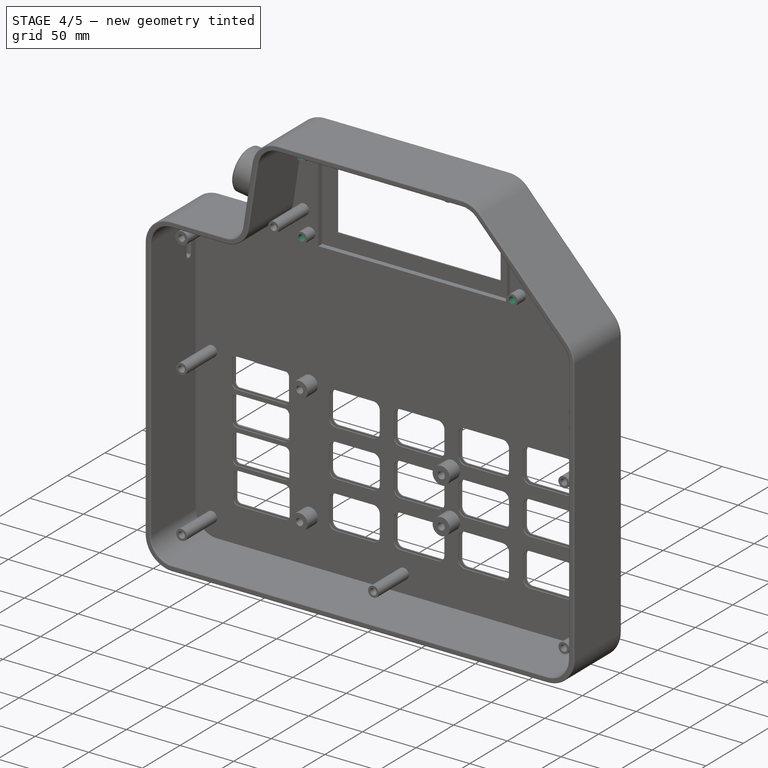
[diagram: stage 4 of 5 — iso view after this stage's code; geometry added in this stage tinted green]
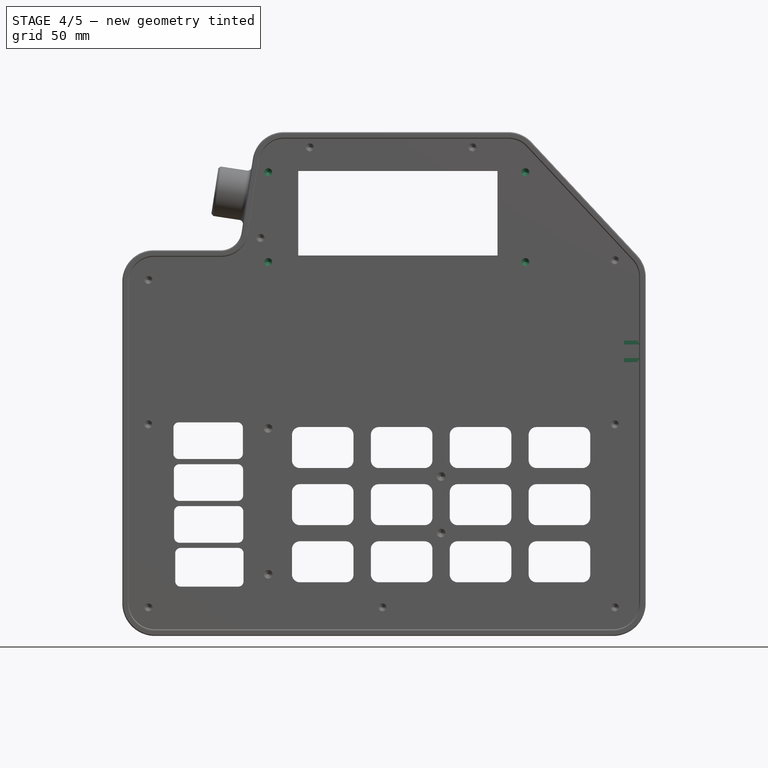
[diagram: stage 4 of 5 — front view after this stage's code; geometry added in this stage tinted green]
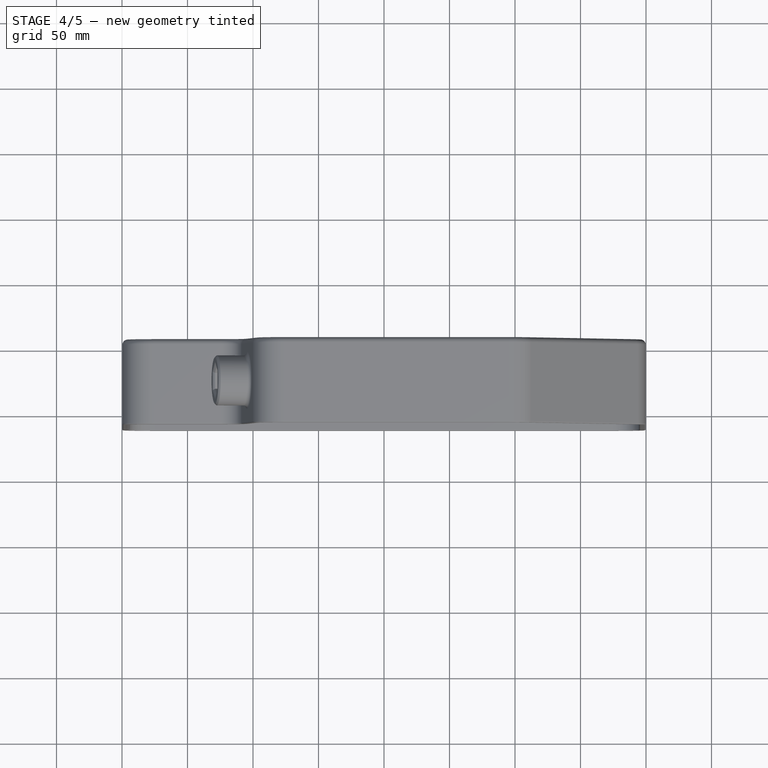
[diagram: stage 4 of 5 — top view after this stage's code; geometry added in this stage tinted green]
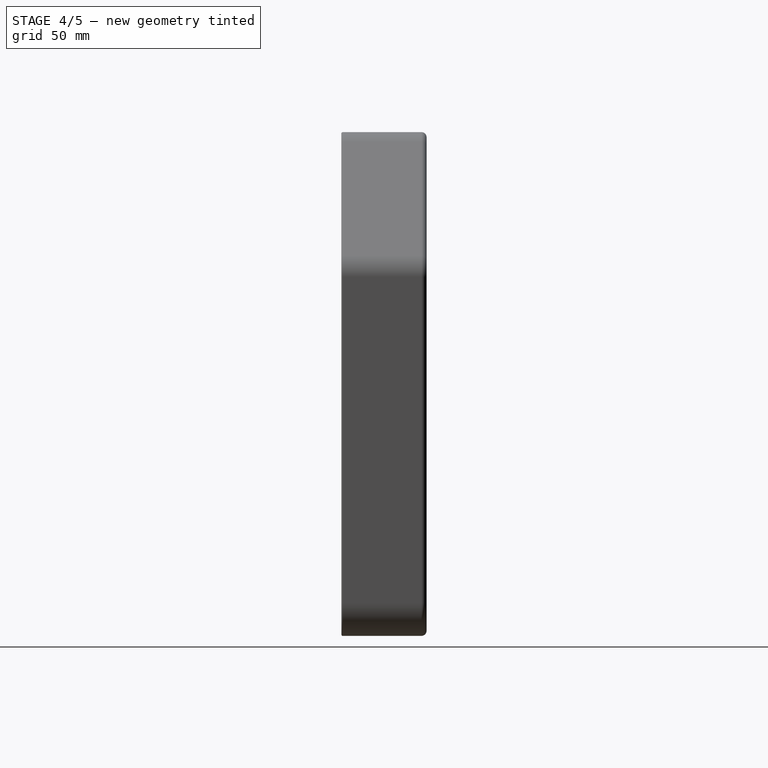
[diagram: stage 4 of 5 — right view after this stage's code; geometry added in this stage tinted green]
FEATURE [PartDesign::Hole] Hole002
  BaseFeature = -> Pad006
  CustomThreadClearance = 0
  Depth = 5
  DepthType = 0
  Diameter = 6
  DrillForDepth = false
  DrillPoint = 1
  DrillPointAngle = 118
  HoleCutCountersinkAngle = 90
  HoleCutCustomValues = false
  HoleCutDepth = 0
  HoleCutDiameter = 6.1
  HoleCutType = 0
  ModelThread = false
  Profile = -> Pad006 [Face382,Face393,Face391,Face381]
  Refine = true
  Tapered = false
  TaperedAngle = 90
  ThreadClass = 0
  ThreadDepth = 5
  ThreadDepthType = 0
  ThreadDirection = 0
  ThreadFit = 0
  ThreadSize = 0
  ThreadType = 0
  Threaded = false
  UseCustomThreadClearance = false
FEATURE [Sketcher::SketchObject] Sketch013
  FullyConstrained = false
  MapMode = 5
  Placement = pos=(0,-1,2e-16) rot=(1,0,0;1.5708rad)
  Support = -> [Hole002]
  sketch-geometry (35):
    g0: LineSegment StartX=-111.901 StartY=-29.2828 StartZ=0 EndX=-156.572 EndY=-29.2828 EndZ=0
    g1: LineSegment StartX=-160.722 StartY=-33.4328 StartZ=0 EndX=-160.722 EndY=-53.1143 EndZ=0
    g2: LineSegment StartX=-156.572 StartY=-57.2643 StartZ=0 EndX=-111.901 EndY=-57.2643 EndZ=0
    g3: LineSegment StartX=-107.751 StartY=-53.1143 StartZ=0 EndX=-107.751 EndY=-33.4328 EndZ=0
    g4: ArcOfCircle CenterX=-156.572 CenterY=-33.4328 CenterZ=0 NormalX=0 NormalY=0 NormalZ=1 AngleXU=0 Radius=4.15 StartAngle=1.5708 EndAngle=3.14159
    g5: ArcOfCircle CenterX=-156.572 CenterY=-53.1143 CenterZ=0 NormalX=0 NormalY=0 NormalZ=1 AngleXU=0 Radius=4.15 StartAngle=3.14159 EndAngle=4.71239
    g6: ArcOfCircle CenterX=-111.901 CenterY=-53.1143 CenterZ=0 NormalX=0 NormalY=0 NormalZ=1 AngleXU=0 Radius=4.15 StartAngle=4.71239 EndAngle=6.28319
    g7: ArcOfCircle CenterX=-111.901 CenterY=-33.4328 CenterZ=0 NormalX=0 NormalY=0 NormalZ=1 AngleXU=0 Radius=4.15 StartAngle=0 EndAngle=1.5708
    g8: LineSegment StartX=-111.719 StartY=-61.228 StartZ=0 EndX=-156.236 EndY=-61.228 EndZ=0
    g9: LineSegment StartX=-160.386 StartY=-65.378 StartZ=0 EndX=-160.386 EndY=-85.0596 EndZ=0
    g10: LineSegment StartX=-156.236 StartY=-89.2096 StartZ=0 EndX=-111.719 EndY=-89.2096 EndZ=0
    g11: LineSegment StartX=-107.569 StartY=-85.0596 StartZ=0 EndX=-107.569 EndY=-65.378 EndZ=0
    g12: ArcOfCircle CenterX=-156.236 CenterY=-65.378 CenterZ=0 NormalX=0 NormalY=0 NormalZ=1 AngleXU=0 Radius=4.15 StartAngle=1.5708 EndAngle=3.14159
    g13: ArcOfCircle CenterX=-156.236 CenterY=-85.0596 CenterZ=0 NormalX=0 NormalY=0 NormalZ=1 AngleXU=0 Radius=4.15 StartAngle=3.14159 EndAngle=4.71239
    g14: ArcOfCircle CenterX=-111.719 CenterY=-85.0596 CenterZ=0 NormalX=0 NormalY=0 NormalZ=1 AngleXU=0 Radius=4.15 StartAngle=4.71239 EndAngle=6.28319
    g15: ArcOfCircle CenterX=-111.719 CenterY=-65.378 CenterZ=0 NormalX=0 NormalY=0 NormalZ=1 AngleXU=0 Radius=4.15 StartAngle=3e-16 EndAngle=1.5708
    g16: LineSegment StartX=-111.901 StartY=-29.2828 StartZ=0 EndX=-111.719 EndY=-61.228 EndZ=0
    g17: LineSegment StartX=-111.538 StartY=-93.1733 StartZ=0 EndX=-156.054 EndY=-93.1733 EndZ=0
    g18: LineSegment StartX=-160.204 StartY=-97.3233 StartZ=0 EndX=-160.204 EndY=-117.005 EndZ=0
    g19: LineSegment StartX=-156.054 StartY=-121.155 StartZ=0 EndX=-111.538 EndY=-121.155 EndZ=0
    g20: LineSegment StartX=-107.388 StartY=-117.005 StartZ=0 EndX=-107.388 EndY=-97.3233 EndZ=0
    g21: ArcOfCircle CenterX=-156.054 CenterY=-97.3233 CenterZ=0 NormalX=0 NormalY=0 NormalZ=1 AngleXU=0 Radius=4.15 StartAngle=1.5708 EndAngle=3.14159
    g22: ArcOfCircle CenterX=-156.054 CenterY=-117.005 CenterZ=0 NormalX=0 NormalY=0 NormalZ=1 AngleXU=0 Radius=4.15 StartAngle=3.14159 EndAngle=4.71239
    g23: ArcOfCircle CenterX=-111.538 CenterY=-117.005 CenterZ=0 NormalX=0 NormalY=0 NormalZ=1 AngleXU=0 Radius=4.15 StartAngle=4.71239 EndAngle=6.28319
    g24: ArcOfCircle CenterX=-111.538 CenterY=-97.3233 CenterZ=0 NormalX=0 NormalY=0 NormalZ=1 AngleXU=0 Radius=4.15 StartAngle=2e-16 EndAngle=1.5708
    g25: LineSegment StartX=-111.719 StartY=-61.228 StartZ=0 EndX=-111.538 EndY=-93.1733 EndZ=0
    g26: LineSegment StartX=-111.356 StartY=-125.119 StartZ=0 EndX=-155.218 EndY=-125.119 EndZ=0
    g27: LineSegment StartX=-159.368 StartY=-129.269 StartZ=0 EndX=-159.368 EndY=-150.508 EndZ=0
    g28: LineSegment StartX=-155.218 StartY=-154.658 StartZ=0 EndX=-111.356 EndY=-154.658 EndZ=0
    g29: LineSegment StartX=-107.206 StartY=-150.508 StartZ=0 EndX=-107.206 EndY=-129.269 EndZ=0
    g30: ArcOfCircle CenterX=-155.218 CenterY=-129.269 CenterZ=0 NormalX=0 NormalY=0 NormalZ=1 AngleXU=0 Radius=4.15 StartAngle=1.5708 EndAngle=3.14159
    g31: ArcOfCircle CenterX=-155.218 CenterY=-150.508 CenterZ=0 NormalX=0 NormalY=0 NormalZ=1 AngleXU=0 Radius=4.15 StartAngle=3.14159 EndAngle=4.71239
    g32: ArcOfCircle CenterX=-111.356 CenterY=-150.508 CenterZ=0 NormalX=0 NormalY=0 NormalZ=1 AngleXU=0 Radius=4.15 StartAngle=4.71239 EndAngle=6.28319
    g33: ArcOfCircle CenterX=-111.356 CenterY=-129.269 CenterZ=0 NormalX=0 NormalY=0 NormalZ=1 AngleXU=0 Radius=4.15 StartAngle=0 EndAngle=1.5708
    g34: LineSegment StartX=-111.538 StartY=-93.1733 StartZ=0 EndX=-111.356 EndY=-125.119 EndZ=0
  constraints (76):
    c: Horizontal(g0)
    c: Horizontal(g2)
    c: Vertical(g1)
    c: Vertical(g3)
    c: Tangent(g1,g4) = -1.5708
    c: Tangent(g0,g4) = -1.5708
    c: Tangent(g1,g5) = -1.5708
    c: Tangent(g2,g5) = -1.5708
    c: Tangent(g3,g6) = -1.5708
    c: Tangent(g2,g6) = -1.5708
    c: Tangent(g3,g7) = -1.5708
    c: Tangent(g0,g7) = -1.5708
    c: Radius(g5) = 4.15
    c: Equal(g5,g6)
    c: Equal(g6,g7)
    c: Equal(g7,g4)
    c: Horizontal(g8)
    c: Horizontal(g10)
    c: Vertical(g9)
    c: Vertical(g11)
    c: Tangent(g9,g12) = -1.5708
    c: Tangent(g8,g12) = -1.5708
    c: Tangent(g9,g13) = -1.5708
    c: Tangent(g10,g13) = -1.5708
    c: Tangent(g11,g14) = -1.5708
    c: Tangent(g10,g14) = -1.5708
    c: Tangent(g11,g15) = -1.5708
    c: Tangent(g8,g15) = -1.5708
    c: Radius(g13) = 4.15
    c: Equal(g13,g14)
    c: Equal(g14,g15)
    c: Equal(g15,g12)
    c: Coincident(g0,g16)
    c: Coincident(g8,g16)
    c: Distance(g16) = 31.9458
    c: Angle(g16) = -1.5651
    c: Horizontal(g17)
    c: Horizontal(g19)
    c: Vertical(g18)
    c: Vertical(g20)
    c: Tangent(g18,g21) = -1.5708
    c: Tangent(g17,g21) = -1.5708
    c: Tangent(g18,g22) = -1.5708
    c: Tangent(g19,g22) = -1.5708
    c: Tangent(g20,g23) = -1.5708
    c: Tangent(g19,g23) = -1.5708
    c: Tangent(g20,g24) = -1.5708
    c: Tangent(g17,g24) = -1.5708
    c: Radius(g22) = 4.15
    c: Equal(g22,g23)
    c: Equal(g23,g24)
    c: Equal(g24,g21)
    c: Coincident(g8,g25)
    c: Coincident(g17,g25)
    c: Equal(g16,g25)
    c: Parallel(g25,g16)
    c: Horizontal(g26)
    c: Horizontal(g28)
    c: Vertical(g27)
    c: Vertical(g29)
    c: Tangent(g27,g30) = -1.5708
    c: Tangent(g26,g30) = -1.5708
    c: Tangent(g27,g31) = -1.5708
    c: Tangent(g28,g31) = -1.5708
    c: Tangent(g29,g32) = -1.5708
    c: Tangent(g28,g32) = -1.5708
    c: Tangent(g29,g33) = -1.5708
    c: Tangent(g26,g33) = -1.5708
    c: Radius(g31) = 4.15
    c: Equal(g31,g32)
    c: Equal(g32,g33)
    c: Equal(g33,g30)
    c: Coincident(g17,g34)
    c: Coincident(g26,g34)
    c: Equal(g16,g34)
    c: Parallel(g34,g16)
FEATURE [PartDesign::Pocket] Pocket005
  BaseFeature = -> Hole002
  Direction = (0,1,-2e-16)
  Length = 5
  Length2 = 5
  Profile = -> Sketch013
  ReferenceAxis = -> Sketch013 [N_Axis]
  Refine = true
  Type = 0
FEATURE [Sketcher::SketchObject] Sketch014
  FullyConstrained = false
  MapMode = 5
  Placement = pos=(194.732,0,0) rot=(0.57735,-0.57735,-0.57735;2.0944rad)
  Support = -> [Pocket005]
  sketch-geometry (4):
    g0: LineSegment StartX=30.5306 StartY=35.4847 StartZ=0 EndX=45.2747 EndY=35.4847 EndZ=0
    g1: LineSegment StartX=45.2747 StartY=35.4847 StartZ=0 EndX=45.2747 EndY=14.2135 EndZ=0
    g2: LineSegment StartX=45.2747 StartY=14.2135 StartZ=0 EndX=30.5306 EndY=14.2135 EndZ=0
    g3: LineSegment StartX=30.5306 StartY=14.2135 StartZ=0 EndX=30.5306 EndY=35.4847 EndZ=0
  constraints (8):
    c: Coincident(g0,g1)
    c: Coincident(g1,g2)
    c: Coincident(g2,g3)
    c: Coincident(g3,g0)
    c: Horizontal(g0)
    c: Horizontal(g2)
    c: Vertical(g1)
    c: Vertical(g3)
FEATURE [PartDesign::Pocket] Pocket006
  BaseFeature = -> Pocket005
  Direction = (1,0,0)
  Length = 0.5
  Length2 = 5
  Profile = -> Sketch014
  ReferenceAxis = -> Sketch014 [N_Axis]
  Refine = true
  Type = 0
FEATURE [Sketcher::SketchObject] Sketch015
  FullyConstrained = false
  MapMode = 5
  Placement = pos=(195.232,0,0) rot=(0.57735,-0.57735,-0.57735;2.0944rad)
  Support = -> [Pocket006]
  sketch-geometry (9):
    g0: LineSegment StartX=32.0922 StartY=33.2247 StartZ=0 EndX=44.2097 EndY=33.2247 EndZ=0
    g1: LineSegment StartX=44.2097 StartY=33.2247 StartZ=0 EndX=44.2097 EndY=30.1504 EndZ=0
    g2: LineSegment StartX=44.2097 StartY=30.1504 StartZ=0 EndX=32.0922 EndY=30.1504 EndZ=0
    g3: LineSegment StartX=32.0922 StartY=30.1504 StartZ=0 EndX=32.0922 EndY=33.2247 EndZ=0
    g4: LineSegment StartX=32.0922 StartY=19.7355 StartZ=0 EndX=44.2097 EndY=19.7355 EndZ=0
    g5: LineSegment StartX=44.2097 StartY=19.7355 StartZ=0 EndX=44.2097 EndY=16.6612 EndZ=0
    g6: LineSegment StartX=44.2097 StartY=16.6612 StartZ=0 EndX=32.0922 EndY=16.6612 EndZ=0
    g7: LineSegment StartX=32.0922 StartY=16.6612 StartZ=0 EndX=32.0922 EndY=19.7355 EndZ=0
    g8: LineSegment StartX=44.2097 StartY=30.1504 StartZ=0 EndX=44.2097 EndY=16.6612 EndZ=0
  constraints (21):
    c: Coincident(g0,g1)
    c: Coincident(g1,g2)
    c: Coincident(g2,g3)
    c: Coincident(g3,g0)
    c: Horizontal(g0)
    c: Horizontal(g2)
    c: Vertical(g1)
    c: Vertical(g3)
    c: Coincident(g4,g5)
    c: Coincident(g5,g6)
    c: Coincident(g6,g7)
    c: Coincident(g7,g4)
    c: Horizontal(g4)
    c: Horizontal(g6)
    c: Vertical(g5)
    c: Vertical(g7)
    c: Equal(g1,g5)
    c: Equal(g2,g4)
    c: Coincident(g8,g1)
    c: Coincident(g8,g5)
    c: Vertical(g8)
FEATURE [PartDesign::Pad] Pad007
  BaseFeature = -> Pocket006
  Direction = (-1,0,0)
  Length = 12
  Length2 = 10
  Profile = -> Sketch015
  ReferenceAxis = -> Sketch015 [N_Axis]
  Refine = true
  Type = 0
FEATURE [PartDesign::Fillet] Fillet004
  Base = -> Pad007 [Edge1209]
  BaseFeature = -> Pad007
  Radius = 2
  Refine = true
  SupportTransform = false
  UseAllEdges = false
FEATURE [PartDesign::Fillet] Fillet005
  Base = -> Fillet004 [Edge11]
  BaseFeature = -> Fillet004
  Radius = 2
  Refine = true
  SupportTransform = false
  UseAllEdges = false
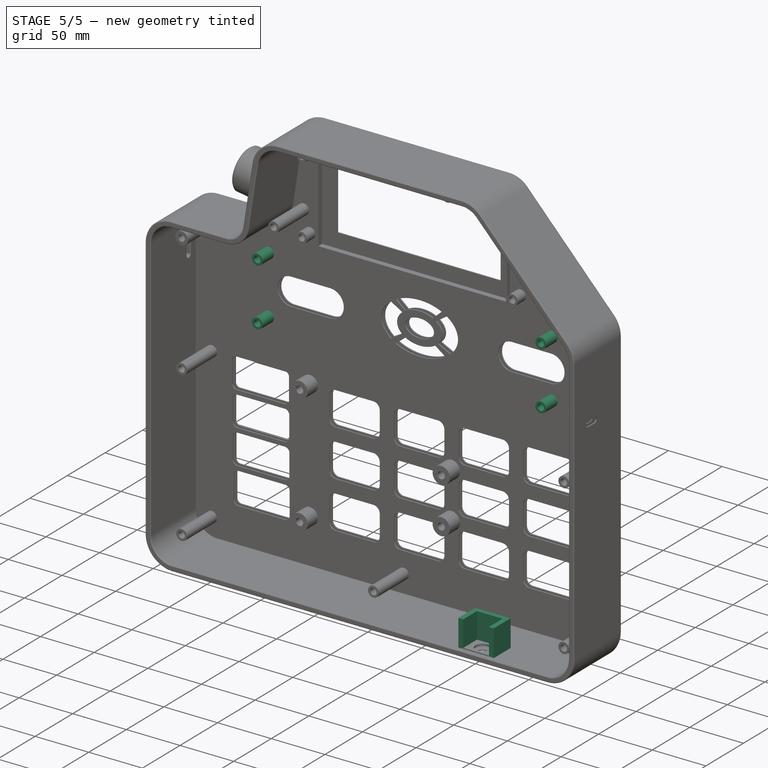
[diagram: stage 5 of 5 — iso view after this stage's code; geometry added in this stage tinted green]
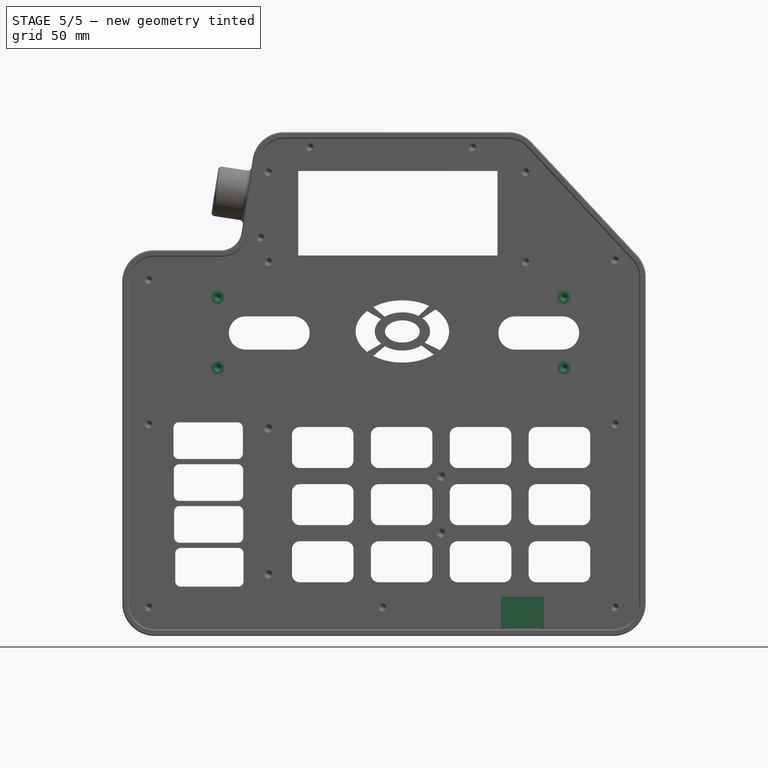
[diagram: stage 5 of 5 — front view after this stage's code; geometry added in this stage tinted green]
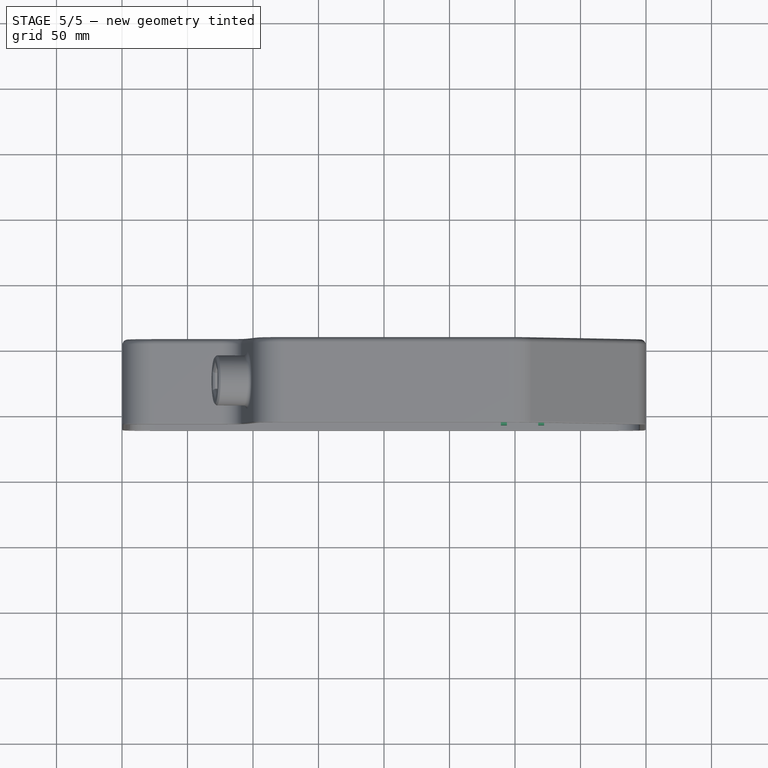
[diagram: stage 5 of 5 — top view after this stage's code; geometry added in this stage tinted green]
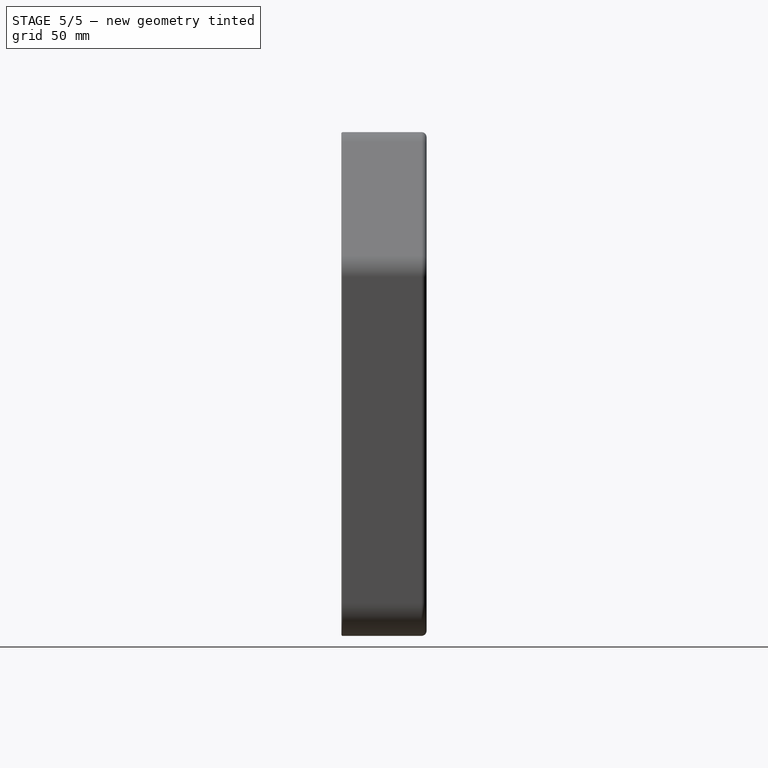
[diagram: stage 5 of 5 — right view after this stage's code; geometry added in this stage tinted green]
FEATURE [Sketcher::SketchObject] Sketch016
  FullyConstrained = false
  MapMode = 5
  Placement = pos=(195.232,0,0) rot=(0.57735,-0.57735,-0.57735;2.0944rad)
  Support = -> [Fillet005]
  sketch-geometry (4):
    g0: ArcOfCircle CenterX=33.2304 CenterY=24.7482 CenterZ=0 NormalX=0 NormalY=0 NormalZ=1 AngleXU=0 Radius=2.43929 StartAngle=1.5708 EndAngle=4.71239
    g1: ArcOfCircle CenterX=42.1421 CenterY=24.7482 CenterZ=0 NormalX=0 NormalY=0 NormalZ=1 AngleXU=0 Radius=2.43929 StartAngle=4.71239 EndAngle=7.85398
    g2: LineSegment StartX=33.2304 StartY=22.3089 StartZ=0 EndX=42.1421 EndY=22.3089 EndZ=0
    g3: LineSegment StartX=42.1421 StartY=27.1875 StartZ=0 EndX=33.2304 EndY=27.1875 EndZ=0
  constraints (6):
    c: Tangent(g0,g2) = -1.5708
    c: Tangent(g2,g1) = -1.5708
    c: Tangent(g1,g3) = -1.5708
    c: Tangent(g3,g0) = -1.5708
    c: Equal(g0,g1)
    c: Horizontal(g3)
FEATURE [PartDesign::Pocket] Pocket007
  BaseFeature = -> Fillet005
  Direction = (1,0,0)
  Length = 5
  Length2 = 5
  Profile = -> Sketch016
  ReferenceAxis = -> Sketch016 [N_Axis]
  Refine = true
  Type = 0
FEATURE [Sketcher::SketchObject] Sketch017
  FullyConstrained = false
  MapMode = 5
  Placement = pos=(0,-8.24e-14,-187.292) rot=(0,0,1;0rad)
  Support = -> [Pocket007]
  sketch-geometry (4):
    g0: LineSegment StartX=89.2254 StartY=-34.6035 StartZ=0 EndX=122.229 EndY=-34.6035 EndZ=0
    g1: LineSegment StartX=122.229 StartY=-34.6035 StartZ=0 EndX=122.229 EndY=-56.9118 EndZ=0
    g2: LineSegment StartX=122.229 StartY=-56.9118 StartZ=0 EndX=89.2254 EndY=-56.9118 EndZ=0
    g3: LineSegment StartX=89.2254 StartY=-56.9118 StartZ=0 EndX=89.2254 EndY=-34.6035 EndZ=0
  constraints (8):
    c: Coincident(g0,g1)
    c: Coincident(g1,g2)
    c: Coincident(g2,g3)
    c: Coincident(g3,g0)
    c: Horizontal(g0)
    c: Horizontal(g2)
    c: Vertical(g1)
    c: Vertical(g3)
FEATURE [PartDesign::Pad] Pad008
  BaseFeature = -> Pocket007
  Direction = (0,4e-16,1)
  Length = 25
  Length2 = 10
  Profile = -> Sketch017
  ReferenceAxis = -> Sketch017 [N_Axis]
  Refine = true
  Type = 0
FEATURE [Sketcher::SketchObject] Sketch018
  FullyConstrained = false
  MapMode = 5
  Placement = pos=(0,0,-162.292) rot=(0,0,1;0rad)
  Support = -> [Pad008]
  sketch-geometry (4):
    g0: LineSegment StartX=93.7745 StartY=-38.7078 StartZ=0 EndX=117.695 EndY=-38.7078 EndZ=0
    g1: LineSegment StartX=117.695 StartY=-38.7078 StartZ=0 EndX=117.695 EndY=-57.2393 EndZ=0
    g2: LineSegment StartX=117.695 StartY=-57.2393 StartZ=0 EndX=93.7745 EndY=-57.2393 EndZ=0
    g3: LineSegment StartX=93.7745 StartY=-57.2393 StartZ=0 EndX=93.7745 EndY=-38.7078 EndZ=0
  constraints (8):
    c: Coincident(g0,g1)
    c: Coincident(g1,g2)
    c: Coincident(g2,g3)
    c: Coincident(g3,g0)
    c: Horizontal(g0)
    c: Horizontal(g2)
    c: Vertical(g1)
    c: Vertical(g3)
FEATURE [PartDesign::Pocket] Pocket008
  BaseFeature = -> Pad008
  Direction = (0,0,-1)
  Length = 24
  Length2 = 5
  Profile = -> Sketch018
  ReferenceAxis = -> Sketch018 [N_Axis]
  Refine = true
  Type = 0
FEATURE [Sketcher::SketchObject] Sketch019
  FullyConstrained = false
  MapMode = 5
  Placement = pos=(0,0,-186.292) rot=(0,0,1;0rad)
  Support = -> [Pocket008]
  sketch-geometry (1):
    g0: Circle CenterX=105.473 CenterY=-47.77 CenterZ=0 NormalX=0 NormalY=0 NormalZ=1 AngleXU=0 Radius=6.73662
FEATURE [PartDesign::Pocket] Pocket009
  BaseFeature = -> Pocket008
  Direction = (0,0,-1)
  Length = 5
  Length2 = 5
  Profile = -> Sketch019
  ReferenceAxis = -> Sketch019 [N_Axis]
  Refine = true
  Type = 1
FEATURE [Sketcher::SketchObject] Sketch020
  FullyConstrained = false
  MapMode = 5
  Placement = pos=(0,-1,2e-16) rot=(1,0,0;1.5708rad)
  Support = -> [Pocket009]
  sketch-geometry (8):
    g0: Circle CenterX=-126.885 CenterY=66.0727 CenterZ=0 NormalX=0 NormalY=0 NormalZ=1 AngleXU=0 Radius=5
    g1: Circle CenterX=-126.885 CenterY=12.31 CenterZ=0 NormalX=0 NormalY=0 NormalZ=1 AngleXU=0 Radius=5
    g2: Circle CenterX=137.32 CenterY=66.0727 CenterZ=0 NormalX=0 NormalY=0 NormalZ=1 AngleXU=0 Radius=5
    g3: Circle CenterX=137.32 CenterY=12.31 CenterZ=0 NormalX=0 NormalY=0 NormalZ=1 AngleXU=0 Radius=5
    g4: LineSegment StartX=-126.885 StartY=66.0727 StartZ=0 EndX=137.32 EndY=66.0727 EndZ=0
    g5: LineSegment StartX=137.32 StartY=66.0727 StartZ=0 EndX=137.32 EndY=12.31 EndZ=0
    g6: LineSegment StartX=137.32 StartY=12.31 StartZ=0 EndX=-126.885 EndY=12.31 EndZ=0
    g7: LineSegment StartX=-126.885 StartY=12.31 StartZ=0 EndX=-126.885 EndY=66.0727 EndZ=0
  constraints (15):
    c: Equal(g1,g0)
    c: Equal(g0,g2)
    c: Equal(g2,g3)
    c: Coincident(g4,g5)
    c: Coincident(g5,g6)
    c: Coincident(g6,g7)
    c: Coincident(g7,g4)
    c: Horizontal(g4)
    c: Horizontal(g6)
    c: Vertical(g5)
    c: Vertical(g7)
    c: Coincident(g5,g3)
    c: Coincident(g0,g4)
    c: Coincident(g1,g6)
    c: Coincident(g2,g4)
FEATURE [PartDesign::Pad] Pad009
  BaseFeature = -> Pocket009
  Direction = (0,-1,2e-16)
  Length = 15
  Length2 = 10
  Profile = -> Sketch020
  ReferenceAxis = -> Sketch020 [N_Axis]
  Refine = true
  Type = 0
FEATURE [PartDesign::Hole] Hole003
  BaseFeature = -> Pad009
  CustomThreadClearance = 0
  Depth = 5
  DepthType = 0
  Diameter = 6
  DrillForDepth = false
  DrillPoint = 1
  DrillPointAngle = 118
  HoleCutCountersinkAngle = 90
  HoleCutCustomValues = false
  HoleCutDepth = 0
  HoleCutDiameter = 6.1
  HoleCutType = 0
  ModelThread = false
  Profile = -> Pad009 [Face258,Face257,Face272,Face271]
  Refine = true
  Tapered = false
  TaperedAngle = 90
  ThreadClass = 0
  ThreadDepth = 5
  ThreadDepthType = 0
  ThreadDirection = 0
  ThreadFit = 0
  ThreadSize = 0
  ThreadType = 0
  Threaded = false
  UseCustomThreadClearance = false
FEATURE [Sketcher::SketchObject] Sketch021
  FullyConstrained = false
  MapMode = 5
  Placement = pos=(0,-1,2e-16) rot=(1,0,0;1.5708rad)
  Support = -> [Hole003]
  sketch-geometry (51):
    g0: ArcOfCircle CenterX=-105.761 CenterY=38.9425 CenterZ=0 NormalX=0 NormalY=0 NormalZ=1 AngleXU=0 Radius=12.66 StartAngle=1.5708 EndAngle=4.71239
    g1: ArcOfCircle CenterX=-69.391 CenterY=38.9425 CenterZ=0 NormalX=0 NormalY=0 NormalZ=1 AngleXU=0 Radius=12.66 StartAngle=4.71239 EndAngle=7.85398
    g2: LineSegment StartX=-105.761 StartY=26.2825 StartZ=0 EndX=-69.391 EndY=26.2825 EndZ=0
    g3: LineSegment StartX=-69.391 StartY=51.6025 StartZ=0 EndX=-105.761 EndY=51.6025 EndZ=0
    g4: ArcOfCircle CenterX=99.921 CenterY=38.9425 CenterZ=0 NormalX=0 NormalY=0 NormalZ=1 AngleXU=0 Radius=12.66 StartAngle=1.5708 EndAngle=4.71239
    g5: ArcOfCircle CenterX=136.291 CenterY=38.9425 CenterZ=0 NormalX=0 NormalY=0 NormalZ=1 AngleXU=0 Radius=12.66 StartAngle=4.71239 EndAngle=7.85398
    g6: LineSegment StartX=99.921 StartY=26.2825 StartZ=0 EndX=136.291 EndY=26.2825 EndZ=0
    g7: LineSegment StartX=136.291 StartY=51.6025 StartZ=0 EndX=99.921 EndY=51.6025 EndZ=0
    g8: Ellipse CenterX=14.021 CenterY=40.0975 CenterZ=0 NormalX=0 NormalY=0 NormalZ=1 MajorRadius=36.6148 MinorRadius=24.102 AngleXU=0
    g9: LineSegment StartX=14.021 StartY=64.1994 StartZ=0 EndX=14.021 EndY=15.9955 EndZ=0
    g10: GeomPoint X=41.5843 Y=40.0975 Z=0
    g11: GeomPoint X=-13.5424 Y=40.0975 Z=0
    g12: LineSegment StartX=-69.391 StartY=38.9425 StartZ=0 EndX=-22.581 EndY=38.9425 EndZ=0
    g13: LineSegment StartX=-69.391 StartY=26.2825 StartZ=0 EndX=99.921 EndY=26.2825 EndZ=0
    g14: Ellipse CenterX=14.021 CenterY=40.0975 CenterZ=0 NormalX=0 NormalY=0 NormalZ=1 MajorRadius=13.2794 MinorRadius=8.4557 AngleXU=0
    g15: LineSegment StartX=27.3003 StartY=40.0975 StartZ=0 EndX=0.741594 EndY=40.0975 EndZ=0
    g16: LineSegment StartX=14.021 StartY=48.5532 StartZ=0 EndX=14.021 EndY=31.6418 EndZ=0
    g17: GeomPoint X=24.2603 Y=40.0975 Z=0
    g18: GeomPoint X=3.78169 Y=40.0975 Z=0
    g19: LineSegment StartX=28.9651 StartY=40.3539 StartZ=0 EndX=28.9651 EndY=34.0845 EndZ=0
    g20: LineSegment StartX=28.9651 StartY=34.0845 StartZ=0 EndX=136.291 EndY=34.0845 EndZ=0
    g21: LineSegment StartX=136.291 StartY=34.0845 StartZ=0 EndX=136.291 EndY=38.9425 EndZ=0
    g22: ArcOfEllipse CenterX=14.021 CenterY=40.0975 CenterZ=0 NormalX=0 NormalY=0 NormalZ=1 MajorRadius=35.6689 MinorRadius=23.7352 AngleXU=0 StartAngle=2.42695 EndAngle=3.8562
    g23: LineSegment StartX=49.6899 StartY=40.0975 StartZ=0 EndX=-21.6479 EndY=40.0975 EndZ=0
    g24: LineSegment StartX=14.021 StartY=63.8327 StartZ=0 EndX=14.021 EndY=16.3623 EndZ=0
    g25: GeomPoint X=40.6464 Y=40.0975 Z=0
    g26: GeomPoint X=-12.6044 Y=40.0975 Z=0
    g27: ArcOfEllipse CenterX=14.021 CenterY=40.0975 CenterZ=0 NormalX=0 NormalY=0 NormalZ=1 MajorRadius=21.0791 MinorRadius=14.5689 AngleXU=0 StartAngle=2.44748 EndAngle=3.83746
    g28: LineSegment StartX=35.1001 StartY=40.0975 StartZ=0 EndX=-7.05814 EndY=40.0975 EndZ=0
    g29: LineSegment StartX=14.021 StartY=54.6664 StartZ=0 EndX=14.021 EndY=25.5285 EndZ=0
    g30: GeomPoint X=29.255 Y=40.0975 Z=0
    g31: GeomPoint X=-1.21303 Y=40.0975 Z=0
    g32: LineSegment StartX=-24.6748 StartY=15.7354 StartZ=0 EndX=-24.6748 EndY=64.4596 EndZ=0
    g33: LineSegment StartX=-24.6748 StartY=64.4596 StartZ=0 EndX=52.7168 EndY=64.4596 EndZ=0
    g34: LineSegment StartX=52.7168 StartY=64.4596 StartZ=0 EndX=52.7168 EndY=15.7354 EndZ=0
    g35: LineSegment StartX=52.7168 StartY=15.7354 StartZ=0 EndX=-24.6748 EndY=15.7354 EndZ=0
    g36: GeomPoint X=14.021 Y=40.0975 Z=0
    g37: LineSegment StartX=-8.14378 StartY=58.6933 StartZ=0 EndX=0.59477 EndY=51.3283 EndZ=0
    g38: LineSegment StartX=-2.1572 StartY=30.758 StartZ=0 EndX=-12.9215 EndY=24.5433 EndZ=0
    g39: LineSegment StartX=0.629269 StartY=28.8626 StartZ=0 EndX=-8.14378 EndY=21.5012 EndZ=0
    g40: LineSegment StartX=28.492 StartY=29.4866 StartZ=0 EndX=37.9594 EndY=22.5016 EndZ=0
    g41: LineSegment StartX=31.1187 StartY=31.5979 StartZ=0 EndX=42.5987 EndY=25.8942 EndZ=0
    g42: LineSegment StartX=-2.18096 StartY=49.4172 StartZ=0 EndX=-12.9207 EndY=55.6523 EndZ=0
    g43: ArcOfEllipse CenterX=14.021 CenterY=40.0975 CenterZ=0 NormalX=0 NormalY=0 NormalZ=1 MajorRadius=21.0791 MinorRadius=14.5689 AngleXU=7.33807e-05 StartAngle=0.946711 EndAngle=2.26127
    g44: LineSegment StartX=26.3378 StartY=51.9211 StartZ=0 EndX=34.4553 EndY=59.552 EndZ=0
    g45: LineSegment StartX=29.2353 StartY=50.2002 StartZ=0 EndX=39.2689 EndY=56.8633 EndZ=0
    g46: ArcOfEllipse CenterX=14.021 CenterY=40.0975 CenterZ=0 NormalX=0 NormalY=0 NormalZ=1 MajorRadius=35.6689 MinorRadius=23.7352 AngleXU=3.76525e-05 StartAngle=0.960745 EndAngle=2.2413
    g47: ArcOfEllipse CenterX=14.021 CenterY=40.0975 CenterZ=0 NormalX=0 NormalY=0 NormalZ=1 MajorRadius=21.0791 MinorRadius=14.5689 AngleXU=-0.00231293 StartAngle=4.02558 EndAngle=5.47067
    g48: ArcOfEllipse CenterX=14.021 CenterY=40.0975 CenterZ=0 NormalX=0 NormalY=0 NormalZ=1 MajorRadius=35.6689 MinorRadius=23.7352 AngleXU=-5e-16 StartAngle=4.04186 EndAngle=5.44812
    g49: ArcOfEllipse CenterX=14.021 CenterY=40.0975 CenterZ=0 NormalX=0 NormalY=0 NormalZ=1 MajorRadius=35.6689 MinorRadius=23.7352 AngleXU=-2.83444e-08 StartAngle=5.64168 EndAngle=7.06754
    g50: ArcOfEllipse CenterX=14.021 CenterY=40.0975 CenterZ=0 NormalX=0 NormalY=0 NormalZ=1 MajorRadius=21.0791 MinorRadius=14.5689 AngleXU=0.00240398 StartAngle=5.6568 EndAngle=7.04596
  constraints (87):
    c: Tangent(g0,g2) = -1.5708
    c: Tangent(g2,g1) = -1.5708
    c: Tangent(g1,g3) = -1.5708
    c: Tangent(g3,g0) = -1.5708
    c: Equal(g0,g1)
    c: Horizontal(g2)
    c: Tangent(g4,g6) = -1.5708
    c: Tangent(g6,g5) = -1.5708
    c: Tangent(g5,g7) = -1.5708
    c: Tangent(g7,g4) = -1.5708
    c: Equal(g4,g5)
    c: Horizontal(g7)
    c: Equal(g3,g7)
    c: Radius(g0) = 12.66
    c: Equal(g0,g4)
    c: InternalAlignment(g9,g8)
    c: InternalAlignment(g10,g8)
    c: InternalAlignment(g11,g8)
    c: Coincident(g12,g1)
    c: Horizontal(g12)
    c: DistanceX(g12,g12) = 46.81
    c: DistanceX(g0,g1) = 36.37
    c: Coincident(g13,g1)
    c: Coincident(g13,g4)
    c: Horizontal(g13)
    c: InternalAlignment(g15-g18 -> g14) x4
    c: Coincident(g14,g8)
    c: Vertical(g19)
    c: Coincident(g20,g19)
    c: Horizontal(g20)
    c: Coincident(g21,g20)
    c: Coincident(g21,g5)
    c: Perpendicular(g19,g15)
    c: Perpendicular(g21,g20)
    c: InternalAlignment(g23-g26 -> g22) x4
    c: Coincident(g22,g14)
    c: InternalAlignment(g28-g31 -> g27) x4
    c: Coincident(g27,g14)
    c: Coincident(g32,g33)
    c: Coincident(g33,g34)
    c: Coincident(g34,g35)
    c: Coincident(g35,g32)
    c: Horizontal(g33)
    c: Horizontal(g35)
    c: Vertical(g32)
    c: Vertical(g34)
    c: Symmetric(g33,g32,g36)
    c: Coincident(g36,g14)
    c: Angle(g38,g39) = 0.174533
    c: Angle(g40,g41) = 0.174533
    c: Horizontal(g23)
    c: Vertical(g9)
    c: Vertical(g29)
    c: Angle(g39,g40) = 1.80781
    c: Angle(g38,g15) = 2.61799
    c: Coincident(g43,g37)
    c: Coincident(g27,g42)
    c: Equal(g27,g43)
    c: Coincident(g27,g43)
    c: Coincident(g44,g43)
    c: Coincident(g45,g50)
    c: Equal(g22,g46)
    c: Coincident(g22,g46)
    c: Equal(g27,g47)
    c: Coincident(g27,g38)
    c: Coincident(g27,g47)
    c: Coincident(g39,g47)
    c: Equal(g22,g48)
    c: Coincident(g22,g48)
    c: Equal(g48,g49)
    c: Coincident(g48,g49)
    c: Coincident(g41,g49)
    c: Equal(g47,g50)
    c: Coincident(g47,g40)
    c: Coincident(g50,g41)
    c: Coincident(g47,g50)
    c: Distance(g27,g39) = 3.37
    c: Distance(g40,g41) = 3.37
    c: Distance(g43,g45) = 3.37
    c: Distance(g37,g27) = 3.37
    c: Coincident(g42,g22)
    c: Coincident(g37,g46)
    c: Coincident(g45,g49)
    c: Coincident(g44,g46)
    c: Coincident(g40,g48)
    c: Coincident(g39,g48)
    c: Coincident(g38,g22)
FEATURE [PartDesign::Pocket] Pocket010
  BaseFeature = -> Hole003
  Direction = (0,1,-2e-16)
  Length = 5
  Length2 = 5
  Profile = -> Sketch021
  ReferenceAxis = -> Sketch021 [N_Axis]
  Refine = true
  Type = 0
FEATURE [PartDesign::Body] Body
  Group = -> [Sketch,Pad,Fillet,Fillet001,Fillet002,Thickness,Sketch002,Pad001,Sketch003,Pocket,Fillet003,Chamfer,Sketch004,Pocket001,Sketch005,Pad002,Thickness001,Sketch006,Pocket002,Sketch008,Pad004,Sketch009,Pocket003,Sketch010,Pad005,Hole,Sketch011,Pocket004,Hole001,Sketch012,Pad006,Hole002,Sketch013,Pocket005,Sketch014,Pocket006,Sketch015,Pad007,Fillet004,Fillet005,Sketch016,Pocket007,Sketch017,Pad008,+9 more]
  Origin = -> Origin
  Tip = -> Pocket010
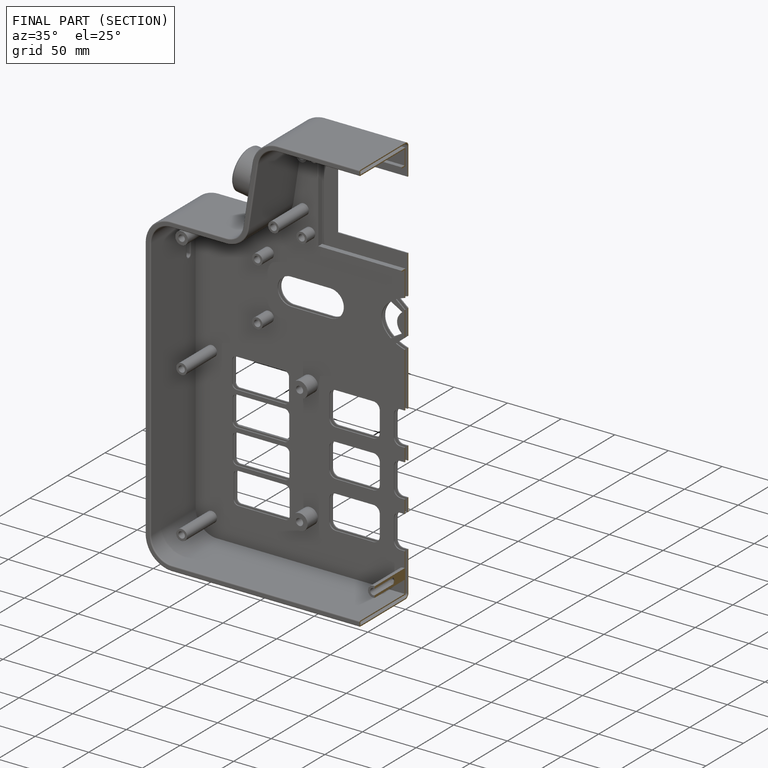
[diagram: finished part — half-section view (interior)]
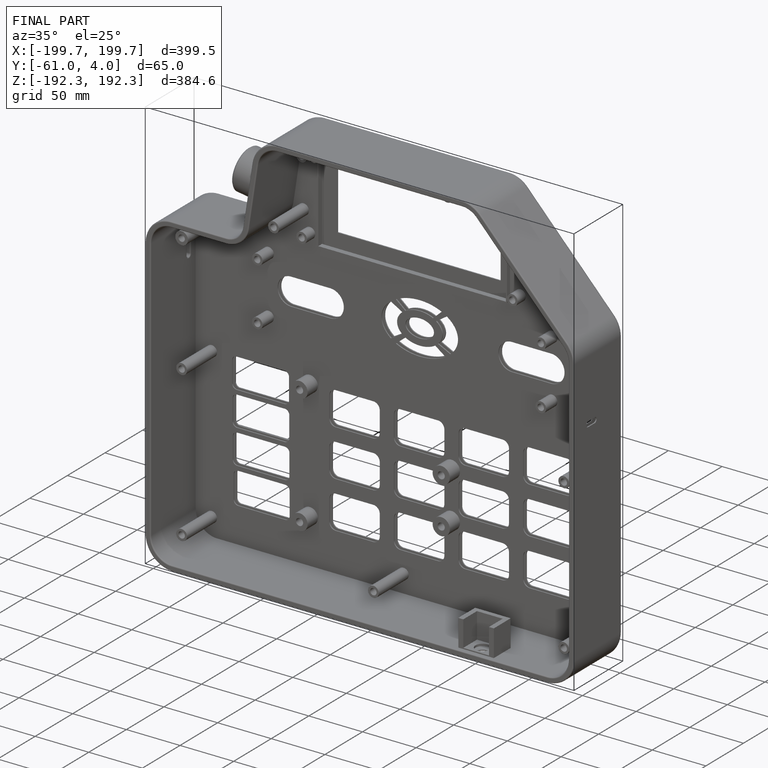
[diagram: finished part — iso view with bounding-box wireframe]
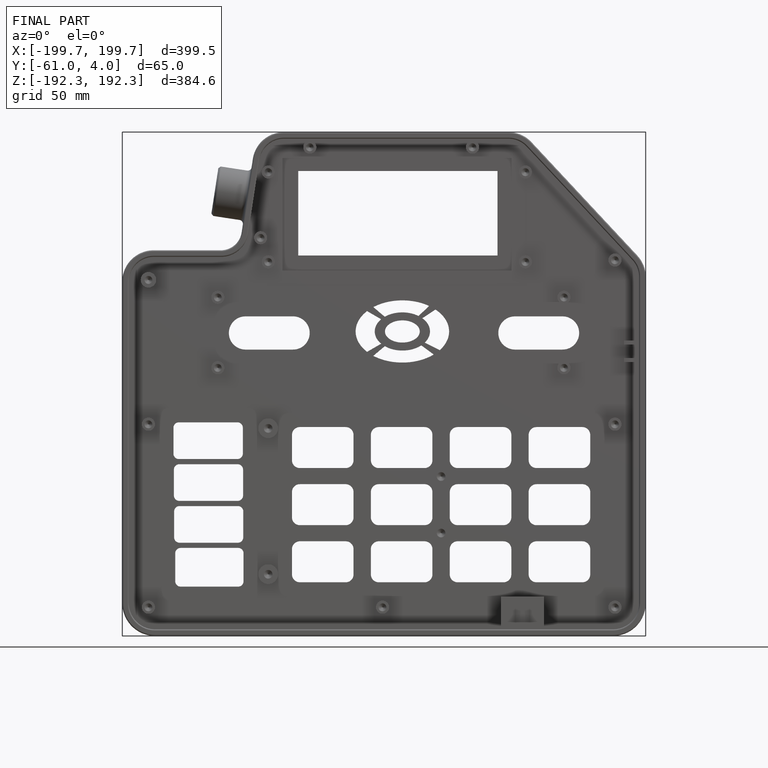
[diagram: finished part — front view with bounding-box wireframe]
